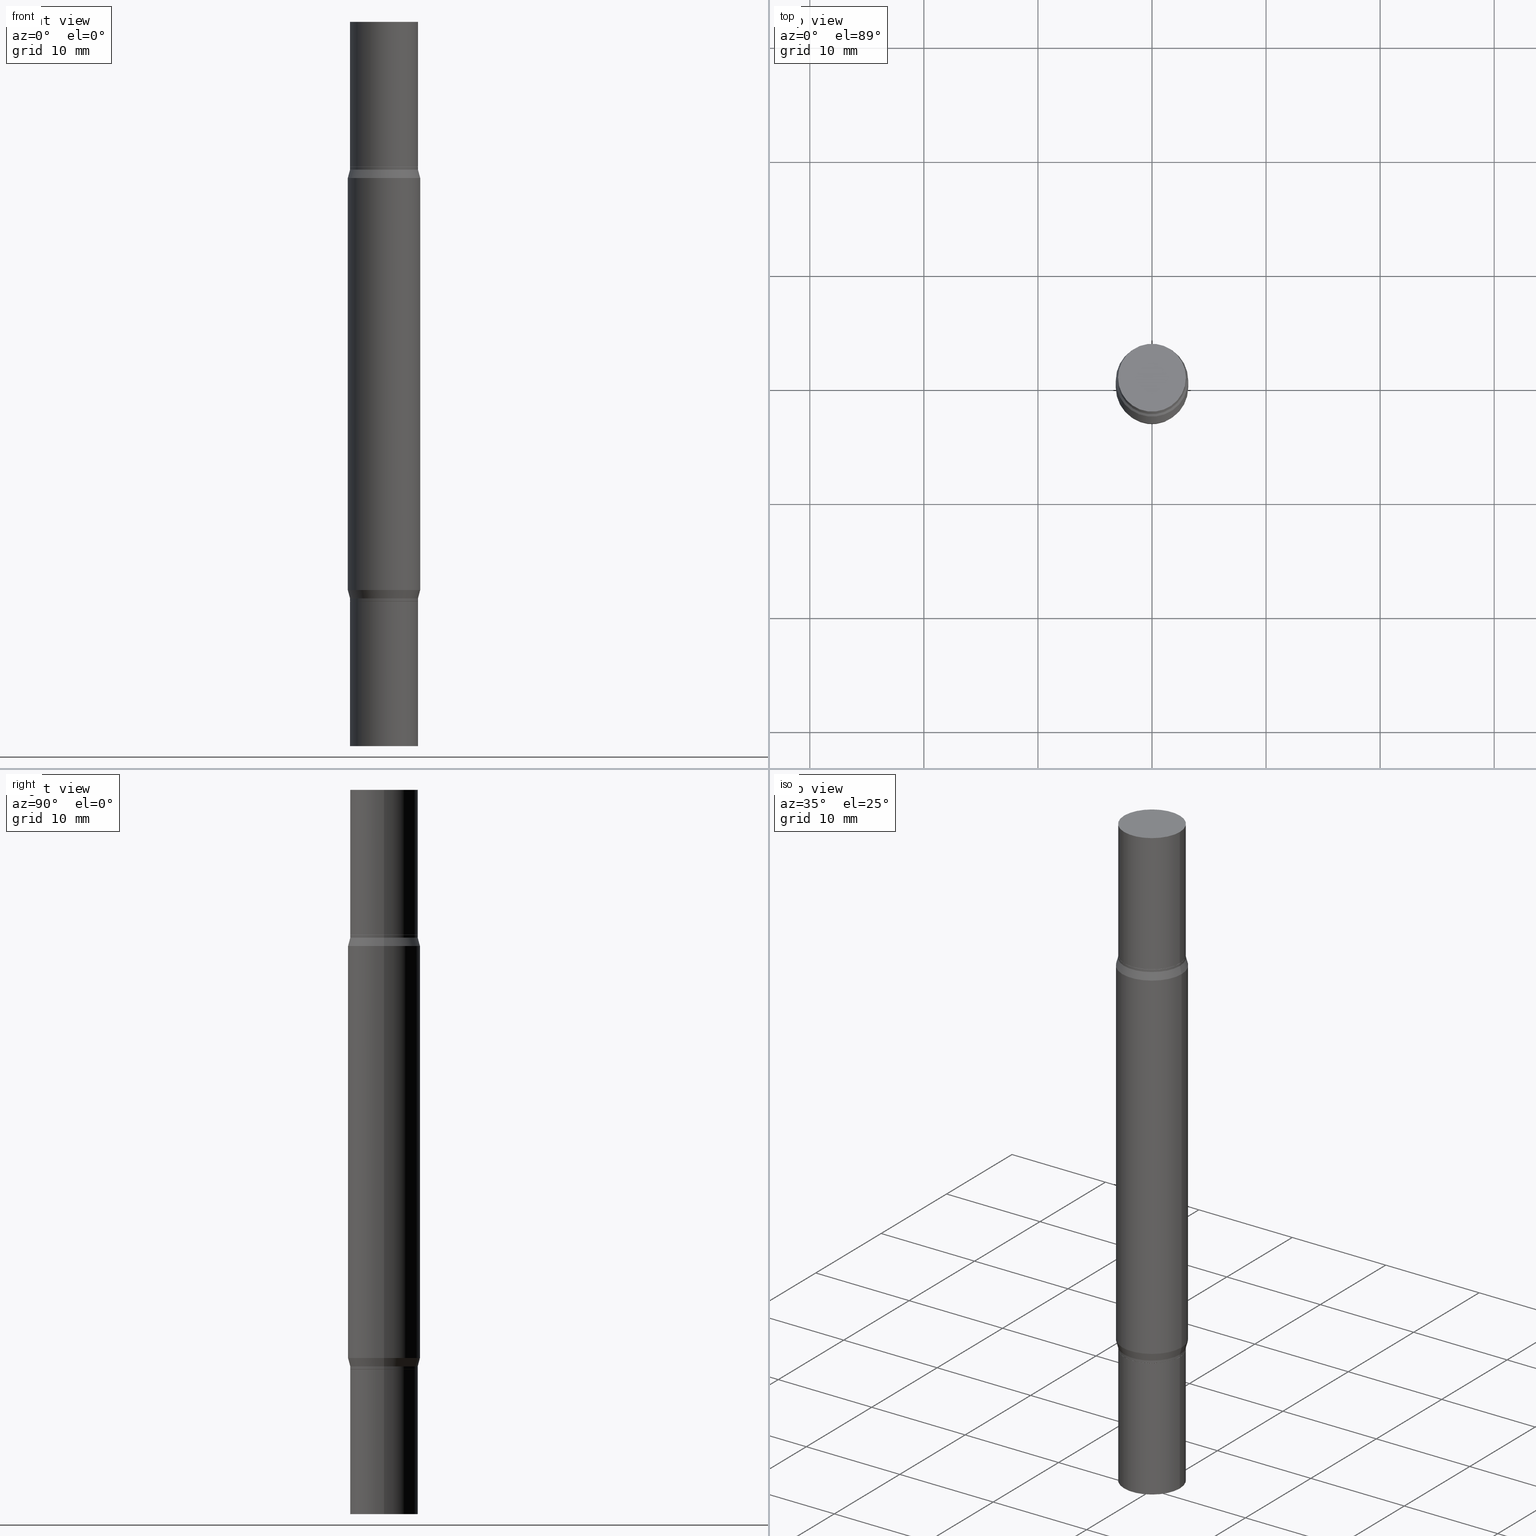
[diagram: canonical four-view strip — front | top / right | iso, engineering-drawing reading convention]
A machine part, canonical four-view strip (front | top / right | iso — engineering-drawing reading convention). The complete STEP part file that produces these views, byte-faithful:
ISO-10303-21;
HEADER;
FILE_DESCRIPTION (( 'STEP AP203' ),
    '1' );
FILE_NAME ('39677.STEP',
    '2024-03-04T16:07:31',
    ( '' ),
    ( '' ),
    'SwSTEP 2.0',
    'SolidWorks 2023',
    '' );
FILE_SCHEMA (( 'CONFIG_CONTROL_DESIGN' ));
ENDSEC;

DATA;
#1 = DIRECTION ( 'NONE',  ( 2.445468806185136597E-29, 3.491805094961124077E-15, 1.000000000000000000 ) ) ;
#2 = EDGE_LOOP ( 'NONE', ( #685, #761, #935, #938 ) ) ;
#3 = ADVANCED_FACE ( 'NONE', ( #973 ), #708, .T. ) ;
#4 = ORIENTED_EDGE ( 'NONE', *, *, #117, .T. ) ;
#5 = DIRECTION ( 'NONE',  ( 0.2588190451025205729, -5.180148453816002468E-15, -0.9659258262890684232 ) ) ;
#6 = DIRECTION ( 'NONE',  ( 1.000000000000000000, -6.982962677686265133E-15, 0.000000000000000000 ) ) ;
#7 = PERSON_AND_ORGANIZATION ( #357, #617 ) ;
#8 = DIRECTION ( 'NONE',  ( 2.438088387897959208E-29, 3.491805094961123683E-15, 1.000000000000000000 ) ) ;
#9 = CLOSED_SHELL ( 'NONE', ( #456, #805, #431, #208 ) ) ;
#10 = FACE_OUTER_BOUND ( 'NONE', #52, .T. ) ;
#11 = CONICAL_SURFACE ( 'NONE', #106, 0.1166999999999999982, 0.7853981633974653764 ) ;
#12 = ORIENTED_EDGE ( 'NONE', *, *, #864, .F. ) ;
#13 = APPROVAL_DATE_TIME ( #703, #673 ) ;
#14 = ORIENTED_EDGE ( 'NONE', *, *, #173, .F. ) ;
#15 = FACE_OUTER_BOUND ( 'NONE', #341, .T. ) ;
#16 = FACE_OUTER_BOUND ( 'NONE', #808, .T. ) ;
#17 = CARTESIAN_POINT ( 'NONE',  ( -0.1171999999999996239, -9.763655379438779721E-16, -0.5099999999999994538 ) ) ;
#18 = DIRECTION ( 'NONE',  ( 1.000000000000000000, -6.982962677686265922E-15, 0.000000000000000000 ) ) ;
#19 = CARTESIAN_POINT ( 'NONE',  ( 4.866482924308422209E-29, -1.780415903282698911E-15, -0.5099999999999994538 ) ) ;
#20 = CALENDAR_DATE ( 2024, 4, 3 ) ;
#21 = ORIENTED_EDGE ( 'NONE', *, *, #565, .T. ) ;
#22 = EDGE_CURVE ( 'NONE', #907, #859, #436, .T. ) ;
#23 = CARTESIAN_POINT ( 'NONE',  ( 0.000000000000000000, -8.729108042255335103E-15, -2.499999999999999556 ) ) ;
#24 = VECTOR ( 'NONE', #726, 39.37007874015748143 ) ;
#25 = CARTESIAN_POINT ( 'NONE',  ( 0.1250000000000000000, -2.754932671384765144E-15, -0.5391099962990381078 ) ) ;
#26 = ORIENTED_EDGE ( 'NONE', *, *, #128, .F. ) ;
#27 = LINE ( 'NONE', #640, #694 ) ;
#28 = ADVANCED_FACE ( 'NONE', ( #314 ), #566, .T. ) ;
#29 = DIRECTION ( 'NONE',  ( 0.000000000000000000, 1.000000000000000000, -4.370956789862821150E-15 ) ) ;
#30 = ORIENTED_EDGE ( 'NONE', *, *, #448, .F. ) ;
#31 = DIRECTION ( 'NONE',  ( 2.445468806185136597E-29, 3.491805094961124077E-15, 1.000000000000000000 ) ) ;
#32 = LINE ( 'NONE', #796, #756 ) ;
#33 = EDGE_CURVE ( 'NONE', #192, #65, #491, .T. ) ;
#34 = CYLINDRICAL_SURFACE ( 'NONE', #791, 0.1171999999999999986 ) ;
#35 = EDGE_LOOP ( 'NONE', ( #561, #716, #214, #780 ) ) ;
#36 = CARTESIAN_POINT ( 'NONE',  ( 0.1250000000000000000, -9.601978376966118441E-15, -2.499999999999999556 ) ) ;
#37 = CARTESIAN_POINT ( 'NONE',  ( 4.890937612370273754E-29, -6.982962677686291954E-15, -2.000000000000000444 ) ) ;
#38 = FACE_OUTER_BOUND ( 'NONE', #35, .T. ) ;
#39 = VECTOR ( 'NONE', #404, 39.37007874015748143 ) ;
#40 = CIRCLE ( 'NONE', #335, 0.1171999999999999986 ) ;
#41 = ORIENTED_EDGE ( 'NONE', *, *, #103, .F. ) ;
#42 = AXIS2_PLACEMENT_3D ( 'NONE', #717, #31, #567 ) ;
#43 = PLANE ( 'NONE',  #896 ) ;
#44 = CARTESIAN_POINT ( 'NONE',  ( 4.795295336410958635E-29, -1.882062336673981410E-15, -0.5391099962990381078 ) ) ;
#45 = EDGE_CURVE ( 'NONE', #859, #630, #163, .T. ) ;
#46 = DIRECTION ( 'NONE',  ( -1.000000000000000000, 6.982962677686265922E-15, -4.876176775795935793E-29 ) ) ;
#47 = ADVANCED_FACE ( 'NONE', ( #425 ), #34, .T. ) ;
#48 = EDGE_LOOP ( 'NONE', ( #323, #293, #306, #217 ) ) ;
#49 = DIRECTION ( 'NONE',  ( -2.445468806185136597E-29, -3.491805094961124077E-15, -1.000000000000000000 ) ) ;
#50 = DIRECTION ( 'NONE',  ( 0.2588190451025205729, 1.565188264969628081E-15, 0.9659258262890684232 ) ) ;
#51 = ADVANCED_FACE ( 'NONE', ( #700 ), #612, .T. ) ;
#52 = EDGE_LOOP ( 'NONE', ( #915, #182, #651, #608 ) ) ;
#53 = ADVANCED_FACE ( 'NONE', ( #571 ), #669, .T. ) ;
#54 = DIRECTION ( 'NONE',  ( 1.000000000000000000, -6.982962677686265922E-15, 2.260776888683160832E-33 ) ) ;
#55 = AXIS2_PLACEMENT_3D ( 'NONE', #302, #914, #395 ) ;
#56 = VERTEX_POINT ( 'NONE', #25 ) ;
#57 = CONICAL_SURFACE ( 'NONE', #742, 0.1166999999999999982, 0.7853981633974653764 ) ;
#58 = AXIS2_PLACEMENT_3D ( 'NONE', #279, #884, #209 ) ;
#59 = AXIS2_PLACEMENT_3D ( 'NONE', #968, #814, #294 ) ;
#60 = ADVANCED_FACE ( 'NONE', ( #715 ), #550, .T. ) ;
#61 = CARTESIAN_POINT ( 'NONE',  ( 0.1171999999999999154, -2.565646980705395418E-15, -0.5004999999999991678 ) ) ;
#62 = ORIENTED_EDGE ( 'NONE', *, *, #689, .T. ) ;
#63 = APPROVAL ( #159, 'UNSPECIFIED' ) ;
#64 = LINE ( 'NONE', #832, #399 ) ;
#65 = VERTEX_POINT ( 'NONE', #638 ) ;
#66 = DIRECTION ( 'NONE',  ( -2.445468806185136877E-29, -3.491805094961123683E-15, -1.000000000000000000 ) ) ;
#67 = DIRECTION ( 'NONE',  ( -2.445468806185136877E-29, -3.491805094961123683E-15, -1.000000000000000000 ) ) ;
#68 = MANIFOLD_SOLID_BREP ( 'Mirror1[3]', #659 ) ;
#69 = CARTESIAN_POINT ( 'NONE',  ( 4.890937612370273754E-29, -1.745497852333085568E-15, -0.4999999999999993339 ) ) ;
#70 = CIRCLE ( 'NONE', #627, 0.1171999999999996239 ) ;
#71 = VECTOR ( 'NONE', #439, 39.37007874015748143 ) ;
#72 = FACE_OUTER_BOUND ( 'NONE', #513, .T. ) ;
#73 = CIRCLE ( 'NONE', #944, 0.1171999999999999986 ) ;
#74 = VECTOR ( 'NONE', #66, 39.37007874015748143 ) ;
#75 = DIRECTION ( 'NONE',  ( -2.445468806185136597E-29, 3.491481338843145583E-15, 1.000000000000000000 ) ) ;
#76 = ORIENTED_EDGE ( 'NONE', *, *, #613, .F. ) ;
#77 = DATE_AND_TIME ( #87, #352 ) ;
#78 = EDGE_LOOP ( 'NONE', ( #277, #338 ) ) ;
#79 = MANIFOLD_SOLID_BREP ( 'Mirror1[4]', #909 ) ;
#80 = CARTESIAN_POINT ( 'NONE',  ( 6.113672015462842613E-29, 4.046951474745467748E-19, 5.463695987328526437E-16 ) ) ;
#81 = ORIENTED_EDGE ( 'NONE', *, *, #969, .F. ) ;
#82 = ORIENTED_EDGE ( 'NONE', *, *, #869, .F. ) ;
#83 = DESIGN_CONTEXT ( 'detailed design', #838, 'design' ) ;
#84 = DIRECTION ( 'NONE',  ( 1.000000000000000000, -6.982962677686265922E-15, 4.876176775795935793E-29 ) ) ;
#85 = CARTESIAN_POINT ( 'NONE',  ( -0.1171999999999996239, -9.597794637428108009E-16, -0.5099999999999994538 ) ) ;
#86 = ORIENTED_EDGE ( 'NONE', *, *, #558, .F. ) ;
#87 = CALENDAR_DATE ( 2024, 4, 3 ) ;
#88 = DIRECTION ( 'NONE',  ( -2.438088387897960049E-29, 3.491481338843145188E-15, 1.000000000000000000 ) ) ;
#89 = CARTESIAN_POINT ( 'NONE',  ( 4.890937612370273194E-29, -1.745497852333086357E-15, -0.4999999999999996114 ) ) ;
#90 = CIRCLE ( 'NONE', #42, 0.1171999999999999154 ) ;
#91 = DIRECTION ( 'NONE',  ( 1.000000000000000000, -6.982962677686267499E-15, 0.000000000000000000 ) ) ;
#92 = EDGE_LOOP ( 'NONE', ( #490, #639, #41, #290 ) ) ;
#93 = DIRECTION ( 'NONE',  ( 1.000000000000000000, -6.982962677686265133E-15, 0.000000000000000000 ) ) ;
#94 = EDGE_CURVE ( 'NONE', #298, #353, #136, .T. ) ;
#95 = CARTESIAN_POINT ( 'NONE',  ( 0.1171999999999999154, -7.799620162841700511E-15, -1.999500000000000277 ) ) ;
#96 = ADVANCED_FACE ( 'NONE', ( #337 ), #344, .T. ) ;
#97 = ORIENTED_EDGE ( 'NONE', *, *, #383, .F. ) ;
#98 = EDGE_CURVE ( 'NONE', #740, #665, #262, .T. ) ;
#99 = LINE ( 'NONE', #923, #755 ) ;
#100 = EDGE_CURVE ( 'NONE', #170, #457, #482, .T. ) ;
#101 = ORIENTED_EDGE ( 'NONE', *, *, #575, .T. ) ;
#102 = CARTESIAN_POINT ( 'NONE',  ( 6.156007611001344257E-29, -8.668076364704272707E-15, -2.500000000000000000 ) ) ;
#103 = EDGE_CURVE ( 'NONE', #899, #658, #348, .T. ) ;
#104 = AXIS2_PLACEMENT_3D ( 'NONE', #69, #381, #6 ) ;
#105 = AXIS2_PLACEMENT_3D ( 'NONE', #724, #351, #590 ) ;
#106 = AXIS2_PLACEMENT_3D ( 'NONE', #239, #476, #93 ) ;
#107 = CARTESIAN_POINT ( 'NONE',  ( 4.795295336410958635E-29, -1.882062336673981410E-15, -0.5391099962990381078 ) ) ;
#108 = ORIENTED_EDGE ( 'NONE', *, *, #243, .F. ) ;
#109 = DIRECTION ( 'NONE',  ( 2.445468806185136597E-29, 3.491805094961124077E-15, 1.000000000000000000 ) ) ;
#110 = DIRECTION ( 'NONE',  ( -2.445468806185136597E-29, 3.491481338843145583E-15, 1.000000000000000000 ) ) ;
#111 = DIRECTION ( 'NONE',  ( 1.000000000000000000, -6.982962677686267499E-15, 0.000000000000000000 ) ) ;
#112 = ORIENTED_EDGE ( 'NONE', *, *, #738, .T. ) ;
#113 = PLANE ( 'NONE',  #58 ) ;
#114 = DIRECTION ( 'NONE',  ( -2.445468806185136877E-29, -3.491805094961123683E-15, -1.000000000000000000 ) ) ;
#115 = DIRECTION ( 'NONE',  ( 1.000000000000000000, -6.982962677686267499E-15, 0.000000000000000000 ) ) ;
#116 = ORIENTED_EDGE ( 'NONE', *, *, #542, .T. ) ;
#117 = EDGE_CURVE ( 'NONE', #683, #129, #801, .T. ) ;
#118 = CARTESIAN_POINT ( 'NONE',  ( 6.113672015462842613E-29, 4.046951474745467748E-19, 5.463695987328526437E-16 ) ) ;
#119 = EDGE_CURVE ( 'NONE', #353, #412, #563, .T. ) ;
#120 = DIRECTION ( 'NONE',  ( -2.445468806185136597E-29, 3.491481338843145583E-15, 1.000000000000000000 ) ) ;
#121 = DIRECTION ( 'NONE',  ( 1.000000000000000000, -6.982962677686267499E-15, 0.000000000000000000 ) ) ;
#122 = CIRCLE ( 'NONE', #960, 0.1171999999999996239 ) ;
#123 = CIRCLE ( 'NONE', #811, 0.1171999999999999154 ) ;
#124 = ORIENTED_EDGE ( 'NONE', *, *, #100, .F. ) ;
#125 = LINE ( 'NONE', #434, #24 ) ;
#126 = AXIS2_PLACEMENT_3D ( 'NONE', #139, #514, #903 ) ;
#127 = CARTESIAN_POINT ( 'NONE',  ( 0.1171999999999999986, -2.563901078157915826E-15, -0.4999999999999993339 ) ) ;
#128 = EDGE_CURVE ( 'NONE', #253, #170, #807, .T. ) ;
#129 = VERTEX_POINT ( 'NONE', #95 ) ;
#130 = CARTESIAN_POINT ( 'NONE',  ( -0.1250000000000000000, -7.871545792533893657E-15, -2.499999999999999556 ) ) ;
#131 = EDGE_CURVE ( 'NONE', #398, #609, #926, .T. ) ;
#132 = LINE ( 'NONE', #358, #792 ) ;
#133 = ORIENTED_EDGE ( 'NONE', *, *, #195, .T. ) ;
#134 = CARTESIAN_POINT ( 'NONE',  ( -0.1250000000000000000, -7.871545792533893657E-15, -2.499999999999999556 ) ) ;
#135 = EDGE_CURVE ( 'NONE', #833, #643, #70, .T. ) ;
#136 = CIRCLE ( 'NONE', #692, 0.1171999999999996239 ) ;
#137 = ORIENTED_EDGE ( 'NONE', *, *, #147, .F. ) ;
#138 = CONICAL_SURFACE ( 'NONE', #218, 0.1171999999999996239, 0.2617993877991492413 ) ;
#139 = CARTESIAN_POINT ( 'NONE',  ( 0.000000000000000000, -8.729108042255335103E-15, -2.499999999999999556 ) ) ;
#140 = CIRCLE ( 'NONE', #419, 0.1166999999999999982 ) ;
#141 = CIRCLE ( 'NONE', #538, 0.1171999999999996239 ) ;
#142 = EDGE_CURVE ( 'NONE', #931, #386, #99, .T. ) ;
#143 = PLANE ( 'NONE',  #927 ) ;
#144 = ORIENTED_EDGE ( 'NONE', *, *, #705, .F. ) ;
#145 = CARTESIAN_POINT ( 'NONE',  ( -0.1166999999999999982, -9.440355627674452081E-16, -0.4999999999999993339 ) ) ;
#146 = ORIENTED_EDGE ( 'NONE', *, *, #558, .T. ) ;
#147 = EDGE_CURVE ( 'NONE', #630, #222, #203, .T. ) ;
#148 = DIRECTION ( 'NONE',  ( 1.000000000000000000, 0.000000000000000000, 0.000000000000000000 ) ) ;
#149 = ORIENTED_EDGE ( 'NONE', *, *, #119, .T. ) ;
#150 = PLANE ( 'NONE',  #493 ) ;
#151 = ORIENTED_EDGE ( 'NONE', *, *, #613, .T. ) ;
#152 = PERSON_AND_ORGANIZATION_ROLE ( 'design_supplier' ) ;
#153 = ORIENTED_EDGE ( 'NONE', *, *, #980, .T. ) ;
#154 = AXIS2_PLACEMENT_3D ( 'NONE', #443, #210, #46 ) ;
#155 = DIRECTION ( 'NONE',  ( -2.445468806185136597E-29, 3.491481338843145583E-15, 1.000000000000000000 ) ) ;
#156 = CIRCLE ( 'NONE', #300, 0.1250000000000000000 ) ;
#157 = DIRECTION ( 'NONE',  ( 1.000000000000000000, -6.982962677686266711E-15, 0.000000000000000000 ) ) ;
#158 = EDGE_LOOP ( 'NONE', ( #82, #496, #372, #259 ) ) ;
#159 = APPROVAL_STATUS ( 'not_yet_approved' ) ;
#160 = CARTESIAN_POINT ( 'NONE',  ( 0.1171999999999996239, -2.598819129107527000E-15, -0.5099999999999994538 ) ) ;
#161 = ADVANCED_FACE ( 'NONE', ( #854 ), #138, .T. ) ;
#162 = DIRECTION ( 'NONE',  ( -1.000000000000000000, 6.982962677686265922E-15, -2.260776888683160832E-33 ) ) ;
#163 = LINE ( 'NONE', #530, #280 ) ;
#164 = PERSON_AND_ORGANIZATION ( #357, #617 ) ;
#165 = EDGE_LOOP ( 'NONE', ( #534, #516, #4, #327 ) ) ;
#166 = CARTESIAN_POINT ( 'NONE',  ( -0.1250000000000000000, -2.265644755392513326E-15, -1.249999999999999778 ) ) ;
#167 = CYLINDRICAL_SURFACE ( 'NONE', #598, 0.1171999999999999986 ) ;
#168 = ORIENTED_EDGE ( 'NONE', *, *, #963, .F. ) ;
#169 = APPROVAL_DATE_TIME ( #397, #310 ) ;
#170 = VERTEX_POINT ( 'NONE', #271 ) ;
#171 = DIRECTION ( 'NONE',  ( 1.000000000000000000, -6.982962677686265922E-15, 2.260776888683160832E-33 ) ) ;
#172 = CIRCLE ( 'NONE', #910, 0.1171999999999999986 ) ;
#173 = EDGE_CURVE ( 'NONE', #630, #831, #650, .T. ) ;
#174 = CYLINDRICAL_SURFACE ( 'NONE', #727, 0.1171999999999999986 ) ;
#175 = CIRCLE ( 'NONE', #729, 0.1250000000000000000 ) ;
#176 = CARTESIAN_POINT ( 'NONE',  ( 0.1166999999999999982, -2.560409596819072819E-15, -0.4999999999999993339 ) ) ;
#177 = COORDINATED_UNIVERSAL_TIME_OFFSET ( 5, 0, .BEHIND. ) ;
#178 = ORIENTED_EDGE ( 'NONE', *, *, #546, .F. ) ;
#179 = CYLINDRICAL_SURFACE ( 'NONE', #350, 0.1171999999999999986 ) ;
#180 = CARTESIAN_POINT ( 'NONE',  ( 4.890937612370273754E-29, -1.745497852333085568E-15, -0.4999999999999993339 ) ) ;
#181 = ADVANCED_FACE ( 'NONE', ( #38 ), #886, .T. ) ;
#182 = ORIENTED_EDGE ( 'NONE', *, *, #142, .T. ) ;
#183 = DIRECTION ( 'NONE',  ( -2.445468806185136597E-29, 3.491481338843145583E-15, 1.000000000000000000 ) ) ;
#184 = DIRECTION ( 'NONE',  ( 0.7071067811865595631, -7.406779323393320831E-15, -0.7071067811865354713 ) ) ;
#185 = ADVANCED_FACE ( 'NONE', ( #654 ), #292, .F. ) ;
#186 = ORIENTED_EDGE ( 'NONE', *, *, #233, .T. ) ;
#187 = CARTESIAN_POINT ( 'NONE',  ( -0.1171999999999996239, -9.597794637428108009E-16, -0.5099999999999994538 ) ) ;
#188 = CLOSED_SHELL ( 'NONE', ( #51, #304, #636, #559, #161, #445, #28, #633, #318, #278, #670, #952, #53, #181, #681, #602 ) ) ;
#189 = VECTOR ( 'NONE', #739, 39.37007874015748143 ) ;
#190 = AXIS2_PLACEMENT_3D ( 'NONE', #860, #183, #400 ) ;
#191 = DIRECTION ( 'NONE',  ( -2.445468806185136597E-29, 3.491481338843145583E-15, 1.000000000000000000 ) ) ;
#192 = VERTEX_POINT ( 'NONE', #61 ) ;
#193 = DIRECTION ( 'NONE',  ( 1.000000000000000000, -6.982962677686265922E-15, 0.000000000000000000 ) ) ;
#194 = CARTESIAN_POINT ( 'NONE',  ( 4.889714877967180953E-29, -6.981216937016870451E-15, -1.999500000000000277 ) ) ;
#195 = EDGE_CURVE ( 'NONE', #457, #907, #812, .T. ) ;
#196 = DIRECTION ( 'NONE',  ( -2.445468806185136597E-29, 3.491481338843145583E-15, 1.000000000000000000 ) ) ;
#197 = ORIENTED_EDGE ( 'NONE', *, *, #131, .F. ) ;
#198 = LINE ( 'NONE', #863, #336 ) ;
#199 = DIRECTION ( 'NONE',  ( 1.000000000000000000, -6.982962677686266711E-15, 0.000000000000000000 ) ) ;
#200 = CARTESIAN_POINT ( 'NONE',  ( 0.1250000000000000000, -2.754932671384765144E-15, -0.5391099962990381078 ) ) ;
#201 = ORIENTED_EDGE ( 'NONE', *, *, #173, .T. ) ;
#202 = DIRECTION ( 'NONE',  ( -0.2588190451025205729, 5.211531920934545520E-15, 0.9659258262890684232 ) ) ;
#203 = CIRCLE ( 'NONE', #333, 0.1250000000000000000 ) ;
#204 = DIRECTION ( 'NONE',  ( -2.445468806185136597E-29, 3.491481338843145583E-15, 1.000000000000000000 ) ) ;
#205 = AXIS2_PLACEMENT_3D ( 'NONE', #240, #75, #390 ) ;
#206 = CIRCLE ( 'NONE', #599, 0.1171999999999999986 ) ;
#207 = VERTEX_POINT ( 'NONE', #127 ) ;
#208 = ADVANCED_FACE ( 'NONE', ( #289 ), #509, .F. ) ;
#209 = DIRECTION ( 'NONE',  ( 0.000000000000000000, 1.000000000000000000, -3.491643216902134435E-15 ) ) ;
#210 = DIRECTION ( 'NONE',  ( 2.438088387897960049E-29, -3.491481338843145188E-15, -1.000000000000000000 ) ) ;
#211 = ORIENTED_EDGE ( 'NONE', *, *, #603, .F. ) ;
#212 = APPROVAL_ROLE ( '' ) ;
#213 = DIRECTION ( 'NONE',  ( 1.000000000000000000, -6.982962677686266711E-15, 4.876176775795935232E-29 ) ) ;
#214 = ORIENTED_EDGE ( 'NONE', *, *, #815, .T. ) ;
#215 = CARTESIAN_POINT ( 'NONE',  ( 0.000000000000000000, 0.000000000000000000, 0.000000000000000000 ) ) ;
#216 = DIRECTION ( 'NONE',  ( 1.000000000000000000, -6.982962677686266711E-15, 0.000000000000000000 ) ) ;
#217 = ORIENTED_EDGE ( 'NONE', *, *, #275, .F. ) ;
#218 = AXIS2_PLACEMENT_3D ( 'NONE', #19, #331, #858 ) ;
#219 = DIRECTION ( 'NONE',  ( 1.000000000000000000, -6.982962677686261977E-15, 0.000000000000000000 ) ) ;
#220 = AXIS2_PLACEMENT_3D ( 'NONE', #89, #699, #940 ) ;
#221 = CARTESIAN_POINT ( 'NONE',  ( 0.000000000000000000, -8.729108042255335103E-15, -2.499999999999999556 ) ) ;
#222 = VERTEX_POINT ( 'NONE', #200 ) ;
#223 = CYLINDRICAL_SURFACE ( 'NONE', #126, 0.1250000000000000000 ) ;
#224 = CARTESIAN_POINT ( 'NONE',  ( 4.890937612370273754E-29, -6.982962677686291954E-15, -2.000000000000000444 ) ) ;
#225 = DIRECTION ( 'NONE',  ( 1.000000000000000000, -6.982962677686269866E-15, 0.000000000000000000 ) ) ;
#226 = ORIENTED_EDGE ( 'NONE', *, *, #98, .T. ) ;
#227 = CARTESIAN_POINT ( 'NONE',  ( -0.1166999999999999982, -6.153759305054254853E-15, -2.000000000000000444 ) ) ;
#228 = EDGE_CURVE ( 'NONE', #813, #748, #475, .T. ) ;
#229 = ORIENTED_EDGE ( 'NONE', *, *, #921, .T. ) ;
#230 = AXIS2_PLACEMENT_3D ( 'NONE', #461, #605, #844 ) ;
#231 = ORIENTED_EDGE ( 'NONE', *, *, #672, .F. ) ;
#232 = AXIS2_PLACEMENT_3D ( 'NONE', #953, #204, #515 ) ;
#233 = EDGE_CURVE ( 'NONE', #359, #643, #449, .T. ) ;
#234 = DIRECTION ( 'NONE',  ( -2.445468806185136877E-29, 3.491481338843145188E-15, 1.000000000000000000 ) ) ;
#235 = CONICAL_SURFACE ( 'NONE', #190, 0.1166999999999999982, 0.7853981633974653764 ) ;
#236 = FACE_OUTER_BOUND ( 'NONE', #158, .T. ) ;
#237 = ORIENTED_EDGE ( 'NONE', *, *, #733, .F. ) ;
#238 = COORDINATED_UNIVERSAL_TIME_OFFSET ( 5, 0, .BEHIND. ) ;
#239 = CARTESIAN_POINT ( 'NONE',  ( 4.890937612370273754E-29, -6.982962677686291954E-15, -2.000000000000000444 ) ) ;
#240 = CARTESIAN_POINT ( 'NONE',  ( 0.000000000000000000, 0.000000000000000000, 0.000000000000000000 ) ) ;
#241 = ORIENTED_EDGE ( 'NONE', *, *, #869, .T. ) ;
#242 = CARTESIAN_POINT ( 'NONE',  ( -0.1171999999999997766, -7.925057676916513769E-15, -2.499999999999999556 ) ) ;
#243 = EDGE_CURVE ( 'NONE', #763, #683, #809, .T. ) ;
#244 = CARTESIAN_POINT ( 'NONE',  ( 4.795295336410958635E-29, -1.882062336673981410E-15, -0.5391099962990381078 ) ) ;
#245 = DIRECTION ( 'NONE',  ( -2.445468806185136597E-29, 3.491481338843145583E-15, 1.000000000000000000 ) ) ;
#246 = CALENDAR_DATE ( 2024, 4, 3 ) ;
#247 = EDGE_LOOP ( 'NONE', ( #97, #231, #732, #406 ) ) ;
#248 = EDGE_CURVE ( 'NONE', #412, #56, #418, .T. ) ;
#249 = AXIS2_PLACEMENT_3D ( 'NONE', #221, #526, #274 ) ;
#250 = VECTOR ( 'NONE', #114, 39.37007874015748143 ) ;
#251 = EDGE_CURVE ( 'NONE', #643, #833, #122, .T. ) ;
#252 = CARTESIAN_POINT ( 'NONE',  ( 0.000000000000000000, -8.729108042255335103E-15, -2.499999999999999556 ) ) ;
#253 = VERTEX_POINT ( 'NONE', #446 ) ;
#254 = CARTESIAN_POINT ( 'NONE',  ( 0.1166999999999999982, -2.560409596819072819E-15, -0.4999999999999993339 ) ) ;
#255 = DIRECTION ( 'NONE',  ( -0.000000000000000000, -3.491643216902134830E-15, -1.000000000000000000 ) ) ;
#256 = ORIENTED_EDGE ( 'NONE', *, *, #33, .F. ) ;
#257 = CARTESIAN_POINT ( 'NONE',  ( -0.1171999999999999986, 8.327560863108374081E-16, -5.764991925778749121E-30 ) ) ;
#258 = DIRECTION ( 'NONE',  ( 1.000000000000000000, -6.982962677686266711E-15, 0.000000000000000000 ) ) ;
#259 = ORIENTED_EDGE ( 'NONE', *, *, #195, .F. ) ;
#260 = DIRECTION ( 'NONE',  ( 1.000000000000000000, -6.982962677686265922E-15, 4.876176775795935793E-29 ) ) ;
#261 = DIRECTION ( 'NONE',  ( 2.445468806185136597E-29, 3.491805094961124077E-15, 1.000000000000000000 ) ) ;
#262 = CIRCLE ( 'NONE', #821, 0.1171999999999999986 ) ;
#263 = CC_DESIGN_PERSON_AND_ORGANIZATION_ASSIGNMENT ( #164, #152, ( #946 ) ) ;
#264 = CIRCLE ( 'NONE', #521, 0.1171999999999999986 ) ;
#265 = AXIS2_PLACEMENT_3D ( 'NONE', #877, #804, #728 ) ;
#266 = CARTESIAN_POINT ( 'NONE',  ( 0.000000000000000000, -8.729108042255335103E-15, -2.499999999999999556 ) ) ;
#267 = AXIS2_PLACEMENT_3D ( 'NONE', #291, #592, #219 ) ;
#268 = ORIENTED_EDGE ( 'NONE', *, *, #575, .F. ) ;
#269 = CARTESIAN_POINT ( 'NONE',  ( 0.1171999999999999986, -8.179985306773559567E-16, 5.463695987328526437E-16 ) ) ;
#270 = FACE_OUTER_BOUND ( 'NONE', #918, .T. ) ;
#271 = CARTESIAN_POINT ( 'NONE',  ( 0.1166999999999999982, -2.560409596819072819E-15, -0.4999999999999993339 ) ) ;
#272 = ORIENTED_EDGE ( 'NONE', *, *, #284, .T. ) ;
#273 = CARTESIAN_POINT ( 'NONE',  ( 3.056836007731420185E-29, -4.364351673553931682E-15, -1.249999999999999778 ) ) ;
#274 = DIRECTION ( 'NONE',  ( 1.000000000000000000, -6.982962677686266711E-15, 0.000000000000000000 ) ) ;
#275 = EDGE_CURVE ( 'NONE', #833, #893, #132, .T. ) ;
#276 = CARTESIAN_POINT ( 'NONE',  ( 0.1171999999999997766, -9.547511268080164375E-15, -2.499999999999999556 ) ) ;
#277 = ORIENTED_EDGE ( 'NONE', *, *, #980, .F. ) ;
#278 = ADVANCED_FACE ( 'NONE', ( #594 ), #371, .T. ) ;
#279 = CARTESIAN_POINT ( 'NONE',  ( 0.000000000000000000, 0.000000000000000000, -1.249999999999999778 ) ) ;
#280 = VECTOR ( 'NONE', #707, 39.37007874015748143 ) ;
#281 = EDGE_CURVE ( 'NONE', #353, #298, #776, .T. ) ;
#282 = DIRECTION ( 'NONE',  ( 1.000000000000000000, -6.982962677686270655E-15, 0.000000000000000000 ) ) ;
#283 = VECTOR ( 'NONE', #836, 39.37007874015748143 ) ;
#284 = EDGE_CURVE ( 'NONE', #893, #831, #586, .T. ) ;
#285 = VECTOR ( 'NONE', #618, 39.37007874015748143 ) ;
#286 = ORIENTED_EDGE ( 'NONE', *, *, #361, .T. ) ;
#287 = CIRCLE ( 'NONE', #267, 0.1171999999999999986 ) ;
#288 = EDGE_CURVE ( 'NONE', #802, #376, #587, .T. ) ;
#289 = FACE_OUTER_BOUND ( 'NONE', #967, .T. ) ;
#290 = ORIENTED_EDGE ( 'NONE', *, *, #784, .F. ) ;
#291 = CARTESIAN_POINT ( 'NONE',  ( 6.113672015462842613E-29, -8.728703347107864943E-15, -2.500000000000000000 ) ) ;
#292 = PLANE ( 'NONE',  #380 ) ;
#293 = ORIENTED_EDGE ( 'NONE', *, *, #842, .T. ) ;
#294 = DIRECTION ( 'NONE',  ( 1.000000000000000000, -6.982962677686265922E-15, 0.000000000000000000 ) ) ;
#295 = DIRECTION ( 'NONE',  ( 2.445468806185136597E-29, 3.491805094961124077E-15, 1.000000000000000000 ) ) ;
#296 = AXIS2_PLACEMENT_3D ( 'NONE', #677, #977, #91 ) ;
#297 = VECTOR ( 'NONE', #560, 39.37007874015748143 ) ;
#298 = VERTEX_POINT ( 'NONE', #966 ) ;
#299 = CONICAL_SURFACE ( 'NONE', #853, 0.1166999999999999982, 0.7853981633974653764 ) ;
#300 = AXIS2_PLACEMENT_3D ( 'NONE', #479, #625, #606 ) ;
#301 = LINE ( 'NONE', #905, #365 ) ;
#302 = CARTESIAN_POINT ( 'NONE',  ( 4.890937612370273754E-29, -1.745497852333085568E-15, -0.4999999999999993339 ) ) ;
#303 = APPROVAL_STATUS ( 'not_yet_approved' ) ;
#304 = ADVANCED_FACE ( 'NONE', ( #970 ), #432, .T. ) ;
#305 = CARTESIAN_POINT ( 'NONE',  ( 0.1171999999999999986, -9.547511268080165952E-15, -2.499999999999999556 ) ) ;
#306 = ORIENTED_EDGE ( 'NONE', *, *, #284, .F. ) ;
#307 = SHAPE_DEFINITION_REPRESENTATION ( #519, #579 ) ;
#308 = CC_DESIGN_PERSON_AND_ORGANIZATION_ASSIGNMENT ( #531, #466, ( #368 ) ) ;
#309 = EDGE_LOOP ( 'NONE', ( #116, #817 ) ) ;
#310 = APPROVAL ( #303, 'UNSPECIFIED' ) ;
#311 = FACE_OUTER_BOUND ( 'NONE', #467, .T. ) ;
#312 = DIRECTION ( 'NONE',  ( 2.445468806185136597E-29, 3.491805094961124077E-15, 1.000000000000000000 ) ) ;
#313 = ADVANCED_FACE ( 'NONE', ( #843 ), #143, .F. ) ;
#314 = FACE_OUTER_BOUND ( 'NONE', #588, .T. ) ;
#315 = PERSON_AND_ORGANIZATION ( #357, #617 ) ;
#316 = ORIENTED_EDGE ( 'NONE', *, *, #389, .T. ) ;
#317 = CIRCLE ( 'NONE', #450, 0.1171999999999999986 ) ;
#318 = ADVANCED_FACE ( 'NONE', ( #768 ), #57, .T. ) ;
#319 = DIRECTION ( 'NONE',  ( -1.000000000000000000, 6.982962677686265922E-15, -2.260776888683160832E-33 ) ) ;
#320 = AXIS2_PLACEMENT_3D ( 'NONE', #388, #781, #786 ) ;
#321 = CYLINDRICAL_SURFACE ( 'NONE', #895, 0.1171999999999999986 ) ;
#322 = EDGE_CURVE ( 'NONE', #943, #207, #674, .T. ) ;
#323 = ORIENTED_EDGE ( 'NONE', *, *, #135, .T. ) ;
#324 = CARTESIAN_POINT ( 'NONE',  ( 4.890937612370273754E-29, -1.745497852333085568E-15, -0.4999999999999993339 ) ) ;
#325 = DIRECTION ( 'NONE',  ( 1.000000000000000000, -6.982962677686266711E-15, 0.000000000000000000 ) ) ;
#326 = CARTESIAN_POINT ( 'NONE',  ( 4.866482924308422209E-29, -6.948047864297860305E-15, -1.989999999999999991 ) ) ;
#327 = ORIENTED_EDGE ( 'NONE', *, *, #485, .F. ) ;
#328 = UNCERTAINTY_MEASURE_WITH_UNIT (LENGTH_MEASURE( 1.000000000000000082E-05 ), #830, 'distance_accuracy_value', 'NONE');
#329 = FACE_OUTER_BOUND ( 'NONE', #416, .T. ) ;
#330 = PRODUCT_RELATED_PRODUCT_CATEGORY ( 'detail', '', ( #766 ) ) ;
#331 = DIRECTION ( 'NONE',  ( -2.445468806185136597E-29, -3.491805094961124077E-15, -1.000000000000000000 ) ) ;
#332 = ORIENTED_EDGE ( 'NONE', *, *, #389, .F. ) ;
#333 = AXIS2_PLACEMENT_3D ( 'NONE', #107, #865, #421 ) ;
#334 = DIRECTION ( 'NONE',  ( 2.445468806185136597E-29, 3.491805094961124077E-15, 1.000000000000000000 ) ) ;
#335 = AXIS2_PLACEMENT_3D ( 'NONE', #751, #312, #378 ) ;
#336 = VECTOR ( 'NONE', #501, 39.37007874015748143 ) ;
#337 = FACE_OUTER_BOUND ( 'NONE', #92, .T. ) ;
#338 = ORIENTED_EDGE ( 'NONE', *, *, #98, .F. ) ;
#339 = CARTESIAN_POINT ( 'NONE',  ( -0.1171999999999999986, -7.023076926086241238E-15, -2.000000000000000444 ) ) ;
#340 = DIRECTION ( 'NONE',  ( 1.000000000000000000, -6.982962677686269866E-15, 0.000000000000000000 ) ) ;
#341 = EDGE_LOOP ( 'NONE', ( #906, #427, #548, #21 ) ) ;
#342 = CARTESIAN_POINT ( 'NONE',  ( 0.1171999999999999986, -7.801365903511122804E-15, -2.000000000000000444 ) ) ;
#343 = CARTESIAN_POINT ( 'NONE',  ( 4.866482924308422209E-29, -1.780415903282698911E-15, -0.5099999999999994538 ) ) ;
#344 = CYLINDRICAL_SURFACE ( 'NONE', #396, 0.1250000000000000000 ) ;
#345 = EDGE_LOOP ( 'NONE', ( #30, #720, #955, #286 ) ) ;
#346 = CARTESIAN_POINT ( 'NONE',  ( -0.1171999999999996239, -6.115291777987025461E-15, -1.989999999999999991 ) ) ;
#347 = DIRECTION ( 'NONE',  ( -2.445468806185136597E-29, 3.491481338843145583E-15, 1.000000000000000000 ) ) ;
#348 = CIRCLE ( 'NONE', #473, 0.1250000000000000000 ) ;
#349 = VECTOR ( 'NONE', #747, 39.37007874015748143 ) ;
#350 = AXIS2_PLACEMENT_3D ( 'NONE', #23, #484, #632 ) ;
#351 = DIRECTION ( 'NONE',  ( -2.445468806185136597E-29, 3.491481338843145583E-15, 1.000000000000000000 ) ) ;
#352 = LOCAL_TIME ( 11, 7, 31.00000000000000000, #764 ) ;
#353 = VERTEX_POINT ( 'NONE', #85 ) ;
#354 = EDGE_CURVE ( 'NONE', #763, #359, #901, .T. ) ;
#355 = CARTESIAN_POINT ( 'NONE',  ( 0.1250000000000000000, -3.996077339824737716E-15, -1.249999999999999778 ) ) ;
#356 = DIRECTION ( 'NONE',  ( 2.445468806185136597E-29, 3.491805094961124077E-15, 1.000000000000000000 ) ) ;
#357 = PERSON ( 'UNSPECIFIED', 'UNSPECIFIED', 'UNSPECIFIED', ('UNSPECIFIED'), ('UNSPECIFIED'), ('UNSPECIFIED') ) ;
#358 = CARTESIAN_POINT ( 'NONE',  ( 0.1171999999999996239, -7.766451090122687999E-15, -1.989999999999999991 ) ) ;
#359 = VERTEX_POINT ( 'NONE', #385 ) ;
#360 = DIRECTION ( 'NONE',  ( -2.445468806185136597E-29, -3.491805094961124077E-15, -1.000000000000000000 ) ) ;
#361 = EDGE_CURVE ( 'NONE', #457, #875, #671, .T. ) ;
#362 = CARTESIAN_POINT ( 'NONE',  ( 0.000000000000000000, -8.729108042255335103E-15, -2.499999999999999556 ) ) ;
#363 = ORIENTED_EDGE ( 'NONE', *, *, #438, .F. ) ;
#364 = CARTESIAN_POINT ( 'NONE',  ( 4.795295336410958635E-29, -1.882062336673981410E-15, -0.5391099962990381078 ) ) ;
#365 = VECTOR ( 'NONE', #67, 39.37007874015748143 ) ;
#366 = CIRCLE ( 'NONE', #382, 0.1166999999999999982 ) ;
#367 = ORIENTED_EDGE ( 'NONE', *, *, #103, .T. ) ;
#368 = SECURITY_CLASSIFICATION ( '', '', #930 ) ;
#369 = CARTESIAN_POINT ( 'NONE',  ( -0.1171999999999999986, -7.925057676916510614E-15, -2.499999999999999556 ) ) ;
#370 = CARTESIAN_POINT ( 'NONE',  ( 4.890937612370273194E-29, -6.982962677686291165E-15, -2.000000000000000000 ) ) ;
#371 = CYLINDRICAL_SURFACE ( 'NONE', #533, 0.1171999999999997766 ) ;
#372 = ORIENTED_EDGE ( 'NONE', *, *, #963, .T. ) ;
#373 = EDGE_CURVE ( 'NONE', #386, #207, #264, .T. ) ;
#374 = ADVANCED_FACE ( 'NONE', ( #10 ), #321, .T. ) ;
#375 = CARTESIAN_POINT ( 'NONE',  ( 4.890937612370273754E-29, -1.745497852333085568E-15, -0.4999999999999993339 ) ) ;
#376 = VERTEX_POINT ( 'NONE', #529 ) ;
#377 = MECHANICAL_CONTEXT ( 'NONE', #753, 'mechanical' ) ;
#378 = DIRECTION ( 'NONE',  ( 1.000000000000000000, -6.982962677686266711E-15, 0.000000000000000000 ) ) ;
#379 = CLOSED_SHELL ( 'NONE', ( #96, #481, #60, #463, #770, #505, #3, #647, #933, #750 ) ) ;
#380 = AXIS2_PLACEMENT_3D ( 'NONE', #892, #806, #54 ) ;
#381 = DIRECTION ( 'NONE',  ( -2.445468806185136597E-29, -3.491805094961124077E-15, -1.000000000000000000 ) ) ;
#382 = AXIS2_PLACEMENT_3D ( 'NONE', #498, #622, #435 ) ;
#383 = EDGE_CURVE ( 'NONE', #398, #65, #64, .T. ) ;
#384 = ORIENTED_EDGE ( 'NONE', *, *, #546, .T. ) ;
#385 = CARTESIAN_POINT ( 'NONE',  ( -0.1171999999999999154, -6.148460850706034029E-15, -1.999500000000000277 ) ) ;
#386 = VERTEX_POINT ( 'NONE', #972 ) ;
#387 = APPROVAL_STATUS ( 'not_yet_approved' ) ;
#388 = CARTESIAN_POINT ( 'NONE',  ( 4.889714877967180953E-29, -1.747243754880567132E-15, -0.5004999999999991678 ) ) ;
#389 = EDGE_CURVE ( 'NONE', #298, #56, #532, .T. ) ;
#390 = DIRECTION ( 'NONE',  ( 1.000000000000000000, -6.982962677686266711E-15, 4.876176775795935793E-29 ) ) ;
#391 = ORIENTED_EDGE ( 'NONE', *, *, #322, .T. ) ;
#392 = DATE_TIME_ROLE ( 'classification_date' ) ;
#393 = PLANE ( 'NONE',  #631 ) ;
#394 = CARTESIAN_POINT ( 'NONE',  ( 4.889714877967180953E-29, -1.747243754880567132E-15, -0.5004999999999991678 ) ) ;
#395 = DIRECTION ( 'NONE',  ( 1.000000000000000000, -6.982962677686265133E-15, 0.000000000000000000 ) ) ;
#396 = AXIS2_PLACEMENT_3D ( 'NONE', #252, #634, #937 ) ;
#397 = DATE_AND_TIME ( #246, #713 ) ;
#398 = VERTEX_POINT ( 'NONE', #145 ) ;
#399 = VECTOR ( 'NONE', #468, 39.37007874015748143 ) ;
#400 = DIRECTION ( 'NONE',  ( 1.000000000000000000, -6.982962677686265133E-15, 0.000000000000000000 ) ) ;
#401 =( GEOMETRIC_REPRESENTATION_CONTEXT ( 3 ) GLOBAL_UNCERTAINTY_ASSIGNED_CONTEXT ( ( #328 ) ) GLOBAL_UNIT_ASSIGNED_CONTEXT ( ( #830, #454, #888 ) ) REPRESENTATION_CONTEXT ( 'NONE', 'WORKASPACE' ) );
#402 = EDGE_CURVE ( 'NONE', #65, #353, #301, .T. ) ;
#403 = DIRECTION ( 'NONE',  ( 1.000000000000000000, -6.982962677686269866E-15, 0.000000000000000000 ) ) ;
#404 = DIRECTION ( 'NONE',  ( 0.7071067811865595631, -2.468850131082382884E-15, 0.7071067811865354713 ) ) ;
#405 = DATE_AND_TIME ( #20, #743 ) ;
#406 = ORIENTED_EDGE ( 'NONE', *, *, #33, .T. ) ;
#407 = CARTESIAN_POINT ( 'NONE',  ( 4.890937612370273194E-29, -1.745497852333086357E-15, -0.4999999999999996114 ) ) ;
#408 = EDGE_CURVE ( 'NONE', #802, #798, #172, .T. ) ;
#409 = MANIFOLD_SOLID_BREP ( 'Mirror1[1]', #379 ) ;
#410 = DIRECTION ( 'NONE',  ( -2.445468806185136597E-29, -3.491805094961124077E-15, -1.000000000000000000 ) ) ;
#411 = CALENDAR_DATE ( 2024, 4, 3 ) ;
#412 = VERTEX_POINT ( 'NONE', #619 ) ;
#413 = MANIFOLD_SOLID_BREP ( 'Body-Move/Copy2[1]', #9 ) ;
#414 = CARTESIAN_POINT ( 'NONE',  ( 0.1166999999999999982, -7.797874422172279797E-15, -2.000000000000000444 ) ) ;
#415 = DIRECTION ( 'NONE',  ( 1.000000000000000000, -6.982962677686267499E-15, 0.000000000000000000 ) ) ;
#416 = EDGE_LOOP ( 'NONE', ( #868, #12, #391, #112 ) ) ;
#417 = CARTESIAN_POINT ( 'NONE',  ( -0.1171999999999999986, -7.023076926086241238E-15, -2.500000000000000000 ) ) ;
#418 = CIRCLE ( 'NONE', #508, 0.1250000000000000000 ) ;
#419 = AXIS2_PLACEMENT_3D ( 'NONE', #37, #347, #947 ) ;
#420 = ADVANCED_FACE ( 'NONE', ( #597 ), #150, .F. ) ;
#421 = DIRECTION ( 'NONE',  ( 1.000000000000000000, -6.982962677686266711E-15, 0.000000000000000000 ) ) ;
#422 = EDGE_LOOP ( 'NONE', ( #862, #710 ) ) ;
#423 = DIRECTION ( 'NONE',  ( 1.000000000000000000, -6.982962677686266711E-15, 0.000000000000000000 ) ) ;
#424 = CARTESIAN_POINT ( 'NONE',  ( 4.890937612370273754E-29, -1.745497852333085568E-15, -0.4999999999999993339 ) ) ;
#425 = FACE_OUTER_BOUND ( 'NONE', #2, .T. ) ;
#426 = EDGE_CURVE ( 'NONE', #931, #943, #40, .T. ) ;
#427 = ORIENTED_EDGE ( 'NONE', *, *, #22, .F. ) ;
#428 = CC_DESIGN_DATE_AND_TIME_ASSIGNMENT ( #537, #919, ( #584 ) ) ;
#429 = CARTESIAN_POINT ( 'NONE',  ( 0.1171999999999996239, -7.766451090122687999E-15, -1.989999999999999991 ) ) ;
#430 = DIRECTION ( 'NONE',  ( -2.445468806185136597E-29, -3.491805094961124077E-15, -1.000000000000000000 ) ) ;
#431 = ADVANCED_FACE ( 'NONE', ( #604 ), #757, .T. ) ;
#432 = CYLINDRICAL_SURFACE ( 'NONE', #105, 0.1171999999999997766 ) ;
#433 = ORIENTED_EDGE ( 'NONE', *, *, #228, .F. ) ;
#434 = CARTESIAN_POINT ( 'NONE',  ( 0.1166999999999999982, -2.560409596819072819E-15, -0.4999999999999993339 ) ) ;
#435 = DIRECTION ( 'NONE',  ( 1.000000000000000000, -6.982962677686265133E-15, 0.000000000000000000 ) ) ;
#436 = CIRCLE ( 'NONE', #296, 0.1171999999999996239 ) ;
#437 = AXIS2_PLACEMENT_3D ( 'NONE', #224, #155, #754 ) ;
#438 = EDGE_CURVE ( 'NONE', #798, #802, #317, .T. ) ;
#439 = DIRECTION ( 'NONE',  ( -2.445468806185136877E-29, -3.491805094961123683E-15, -1.000000000000000000 ) ) ;
#440 = AXIS2_PLACEMENT_3D ( 'NONE', #734, #360, #656 ) ;
#441 = ORIENTED_EDGE ( 'NONE', *, *, #847, .F. ) ;
#442 = FACE_OUTER_BOUND ( 'NONE', #793, .T. ) ;
#443 = CARTESIAN_POINT ( 'NONE',  ( 8.184032258248792661E-16, 0.1171999999999930181, -2.000000000000000444 ) ) ;
#444 = ORIENTED_EDGE ( 'NONE', *, *, #819, .T. ) ;
#445 = ADVANCED_FACE ( 'NONE', ( #236 ), #540, .T. ) ;
#446 = CARTESIAN_POINT ( 'NONE',  ( -0.1166999999999999982, -9.440355627674452081E-16, -0.4999999999999993339 ) ) ;
#447 = EDGE_LOOP ( 'NONE', ( #483, #186, #745, #887 ) ) ;
#448 = EDGE_CURVE ( 'NONE', #253, #875, #32, .T. ) ;
#449 = LINE ( 'NONE', #736, #189 ) ;
#450 = AXIS2_PLACEMENT_3D ( 'NONE', #611, #911, #898 ) ;
#451 = ORIENTED_EDGE ( 'NONE', *, *, #842, .F. ) ;
#452 = DIRECTION ( 'NONE',  ( 1.000000000000000000, -6.982962677686266711E-15, 0.000000000000000000 ) ) ;
#453 = ORIENTED_EDGE ( 'NONE', *, *, #22, .T. ) ;
#454 =( NAMED_UNIT ( * ) PLANE_ANGLE_UNIT ( ) SI_UNIT ( $, .RADIAN. ) );
#455 = DIRECTION ( 'NONE',  ( -2.438088387897959208E-29, -3.491805094961123683E-15, -1.000000000000000000 ) ) ;
#456 = ADVANCED_FACE ( 'NONE', ( #502 ), #167, .T. ) ;
#457 = VERTEX_POINT ( 'NONE', #852 ) ;
#458 = CARTESIAN_POINT ( 'NONE',  ( 6.156007611001344257E-29, 6.103167755106539107E-17, 5.463695987328526437E-16 ) ) ;
#459 = ADVANCED_FACE ( 'NONE', ( #951 ), #174, .T. ) ;
#460 = CONICAL_SURFACE ( 'NONE', #553, 0.1171999999999996239, 0.2617993877991492413 ) ;
#461 = CARTESIAN_POINT ( 'NONE',  ( 4.889714877967180953E-29, -1.747243754880567132E-15, -0.5004999999999991678 ) ) ;
#462 = AXIS2_PLACEMENT_3D ( 'NONE', #118, #109, #423 ) ;
#463 = ADVANCED_FACE ( 'NONE', ( #641 ), #299, .T. ) ;
#464 = DIRECTION ( 'NONE',  ( 1.000000000000000000, -6.982962677686265922E-15, 2.260776888683160832E-33 ) ) ;
#465 = EDGE_LOOP ( 'NONE', ( #564, #256, #384, #693 ) ) ;
#466 = PERSON_AND_ORGANIZATION_ROLE ( 'classification_officer' ) ;
#467 = EDGE_LOOP ( 'NONE', ( #146, #472, #737, #688 ) ) ;
#468 = DIRECTION ( 'NONE',  ( -0.7071067811865595631, 2.382025595312359119E-15, -0.7071067811865354713 ) ) ;
#469 = ORIENTED_EDGE ( 'NONE', *, *, #383, .T. ) ;
#470 = CARTESIAN_POINT ( 'NONE',  ( 0.1171999999999999986, -9.547106572932694215E-15, -2.500000000000000000 ) ) ;
#471 = CARTESIAN_POINT ( 'NONE',  ( 0.000000000000000000, 0.000000000000000000, 0.000000000000000000 ) ) ;
#472 = ORIENTED_EDGE ( 'NONE', *, *, #354, .T. ) ;
#473 = AXIS2_PLACEMENT_3D ( 'NONE', #929, #255, #29 ) ;
#474 = ORIENTED_EDGE ( 'NONE', *, *, #954, .F. ) ;
#475 = CIRCLE ( 'NONE', #551, 0.1171999999999999986 ) ;
#476 = DIRECTION ( 'NONE',  ( -2.445468806185136597E-29, 3.491481338843145583E-15, 1.000000000000000000 ) ) ;
#477 = CIRCLE ( 'NONE', #462, 0.1171999999999999986 ) ;
#478 = CC_DESIGN_APPROVAL ( #673, ( #368 ) ) ;
#479 = CARTESIAN_POINT ( 'NONE',  ( 4.795295336410958635E-29, -6.846410855445973637E-15, -1.960890003700961337 ) ) ;
#480 = DIRECTION ( 'NONE',  ( 1.000000000000000000, -6.982962677686267499E-15, 0.000000000000000000 ) ) ;
#481 = ADVANCED_FACE ( 'NONE', ( #581 ), #460, .T. ) ;
#482 = LINE ( 'NONE', #176, #942 ) ;
#483 = ORIENTED_EDGE ( 'NONE', *, *, #535, .T. ) ;
#484 = DIRECTION ( 'NONE',  ( -2.445468806185136597E-29, -3.491805094961124077E-15, -1.000000000000000000 ) ) ;
#485 = EDGE_CURVE ( 'NONE', #359, #129, #974, .T. ) ;
#486 = DIRECTION ( 'NONE',  ( 1.000000000000000000, -6.982962677686265133E-15, 0.000000000000000000 ) ) ;
#487 = ORIENTED_EDGE ( 'NONE', *, *, #448, .T. ) ;
#488 = DIRECTION ( 'NONE',  ( 0.2588190451025205729, -5.180148453816002468E-15, -0.9659258262890684232 ) ) ;
#489 = CARTESIAN_POINT ( 'NONE',  ( 6.113672015462842613E-29, -8.728703347107864943E-15, -2.500000000000000000 ) ) ;
#490 = ORIENTED_EDGE ( 'NONE', *, *, #248, .F. ) ;
#491 = CIRCLE ( 'NONE', #230, 0.1171999999999999154 ) ;
#492 = DIRECTION ( 'NONE',  ( 2.445468806185136597E-29, 3.491805094961124077E-15, 1.000000000000000000 ) ) ;
#493 = AXIS2_PLACEMENT_3D ( 'NONE', #458, #455, #464 ) ;
#494 = AXIS2_PLACEMENT_3D ( 'NONE', #497, #49, #956 ) ;
#495 = CARTESIAN_POINT ( 'NONE',  ( 4.866482924308422209E-29, -1.780415903282698911E-15, -0.5099999999999994538 ) ) ;
#496 = ORIENTED_EDGE ( 'NONE', *, *, #603, .T. ) ;
#497 = CARTESIAN_POINT ( 'NONE',  ( 0.000000000000000000, -8.729108042255335103E-15, -2.499999999999999556 ) ) ;
#498 = CARTESIAN_POINT ( 'NONE',  ( 4.890937612370273754E-29, -1.745497852333085568E-15, -0.4999999999999993339 ) ) ;
#499 = DIRECTION ( 'NONE',  ( 1.000000000000000000, -6.982962677686267499E-15, 0.000000000000000000 ) ) ;
#500 = ORIENTED_EDGE ( 'NONE', *, *, #900, .F. ) ;
#501 = DIRECTION ( 'NONE',  ( -2.445468806185136877E-29, -3.491805094961123683E-15, -1.000000000000000000 ) ) ;
#502 = FACE_OUTER_BOUND ( 'NONE', #959, .T. ) ;
#503 = DIRECTION ( 'NONE',  ( 1.000000000000000000, -6.982962677686269866E-15, 0.000000000000000000 ) ) ;
#504 = ORIENTED_EDGE ( 'NONE', *, *, #565, .F. ) ;
#505 = ADVANCED_FACE ( 'NONE', ( #16 ), #774, .F. ) ;
#506 = CARTESIAN_POINT ( 'NONE',  ( -0.1171999999999999154, -9.431933895417428408E-16, -0.5004999999999991678 ) ) ;
#507 = AXIS2_PLACEMENT_3D ( 'NONE', #941, #555, #861 ) ;
#508 = AXIS2_PLACEMENT_3D ( 'NONE', #364, #520, #948 ) ;
#509 = PLANE ( 'NONE',  #154 ) ;
#510 = ORIENTED_EDGE ( 'NONE', *, *, #672, .T. ) ;
#511 = DIRECTION ( 'NONE',  ( -2.445468806185136877E-29, -3.491805094961123683E-15, -1.000000000000000000 ) ) ;
#512 = DIRECTION ( 'NONE',  ( 2.445468806185136597E-29, 3.491805094961124077E-15, 1.000000000000000000 ) ) ;
#513 = EDGE_LOOP ( 'NONE', ( #86, #108 ) ) ;
#514 = DIRECTION ( 'NONE',  ( -2.445468806185136597E-29, -3.491805094961124077E-15, -1.000000000000000000 ) ) ;
#515 = DIRECTION ( 'NONE',  ( 1.000000000000000000, -6.982962677686265133E-15, 0.000000000000000000 ) ) ;
#516 = ORIENTED_EDGE ( 'NONE', *, *, #243, .T. ) ;
#517 = CARTESIAN_POINT ( 'NONE',  ( 0.1171999999999999986, -8.179985306773559567E-16, 5.463695987328526437E-16 ) ) ;
#518 = AXIS2_PLACEMENT_3D ( 'NONE', #326, #191, #499 ) ;
#519 = PRODUCT_DEFINITION_SHAPE ( 'NONE', 'NONE',  #584 ) ;
#520 = DIRECTION ( 'NONE',  ( 2.445468806185136597E-29, 3.491805094961124077E-15, 1.000000000000000000 ) ) ;
#521 = AXIS2_PLACEMENT_3D ( 'NONE', #825, #1, #976 ) ;
#522 = EDGE_CURVE ( 'NONE', #56, #412, #837, .T. ) ;
#523 = VECTOR ( 'NONE', #721, 39.37007874015748143 ) ;
#524 = EDGE_LOOP ( 'NONE', ( #363, #572, #697, #595 ) ) ;
#525 =( LENGTH_UNIT ( ) NAMED_UNIT ( * ) SI_UNIT ( $, .METRE. ) );
#526 = DIRECTION ( 'NONE',  ( -2.445468806185136597E-29, -3.491805094961124077E-15, -1.000000000000000000 ) ) ;
#527 = ORIENTED_EDGE ( 'NONE', *, *, #689, .F. ) ;
#528 = LINE ( 'NONE', #130, #74 ) ;
#529 = CARTESIAN_POINT ( 'NONE',  ( 0.1171999999999999986, -2.563901078157915826E-15, -0.4999999999999993339 ) ) ;
#530 = CARTESIAN_POINT ( 'NONE',  ( -0.1171999999999996239, -9.763655379438779721E-16, -0.5099999999999994538 ) ) ;
#531 = PERSON_AND_ORGANIZATION ( #357, #617 ) ;
#532 = LINE ( 'NONE', #687, #835 ) ;
#533 = AXIS2_PLACEMENT_3D ( 'NONE', #362, #731, #216 ) ;
#534 = ORIENTED_EDGE ( 'NONE', *, *, #354, .F. ) ;
#535 = EDGE_CURVE ( 'NONE', #129, #359, #123, .T. ) ;
#536 = AXIS2_PLACEMENT_3D ( 'NONE', #881, #547, #848 ) ;
#537 = DATE_AND_TIME ( #840, #897 ) ;
#538 = AXIS2_PLACEMENT_3D ( 'NONE', #663, #596, #894 ) ;
#539 = CC_DESIGN_PERSON_AND_ORGANIZATION_ASSIGNMENT ( #961, #679, ( #766 ) ) ;
#540 = CYLINDRICAL_SURFACE ( 'NONE', #249, 0.1171999999999997766 ) ;
#541 = ORIENTED_EDGE ( 'NONE', *, *, #275, .T. ) ;
#542 = EDGE_CURVE ( 'NONE', #170, #253, #366, .T. ) ;
#543 = PERSON_AND_ORGANIZATION ( #357, #617 ) ;
#544 = ORIENTED_EDGE ( 'NONE', *, *, #593, .T. ) ;
#545 = LINE ( 'NONE', #242, #285 ) ;
#546 = EDGE_CURVE ( 'NONE', #192, #298, #800, .T. ) ;
#547 = DIRECTION ( 'NONE',  ( -2.445468806185136597E-29, 3.491481338843145583E-15, 1.000000000000000000 ) ) ;
#548 = ORIENTED_EDGE ( 'NONE', *, *, #733, .T. ) ;
#549 = DIRECTION ( 'NONE',  ( -2.445468806185136597E-29, -3.491805094961124077E-15, -1.000000000000000000 ) ) ;
#550 = CYLINDRICAL_SURFACE ( 'NONE', #775, 0.1171999999999997766 ) ;
#551 = AXIS2_PLACEMENT_3D ( 'NONE', #576, #882, #503 ) ;
#552 = EDGE_LOOP ( 'NONE', ( #769, #149, #834, #332 ) ) ;
#553 = AXIS2_PLACEMENT_3D ( 'NONE', #343, #569, #480 ) ;
#554 = CARTESIAN_POINT ( 'NONE',  ( -0.1171999999999996239, -6.131876314346530928E-15, -1.989999999999999991 ) ) ;
#555 = DIRECTION ( 'NONE',  ( 2.445468806185136597E-29, 3.491805094961124077E-15, 1.000000000000000000 ) ) ;
#556 = EDGE_LOOP ( 'NONE', ( #451, #902, #541, #268 ) ) ;
#557 = LINE ( 'NONE', #920, #648 ) ;
#558 = EDGE_CURVE ( 'NONE', #683, #763, #140, .T. ) ;
#559 = ADVANCED_FACE ( 'NONE', ( #270 ), #574, .T. ) ;
#560 = DIRECTION ( 'NONE',  ( -0.2588190451025205729, -1.597197180879720243E-15, -0.9659258262890684232 ) ) ;
#561 = ORIENTED_EDGE ( 'NONE', *, *, #233, .F. ) ;
#562 = LINE ( 'NONE', #346, #758 ) ;
#563 = LINE ( 'NONE', #17, #297 ) ;
#564 = ORIENTED_EDGE ( 'NONE', *, *, #402, .F. ) ;
#565 = EDGE_CURVE ( 'NONE', #222, #630, #660, .T. ) ;
#566 = CONICAL_SURFACE ( 'NONE', #55, 0.1166999999999999982, 0.7853981633974653764 ) ;
#567 = DIRECTION ( 'NONE',  ( 1.000000000000000000, -6.982962677686266711E-15, 0.000000000000000000 ) ) ;
#568 = AXIS2_PLACEMENT_3D ( 'NONE', #889, #657, #213 ) ;
#569 = DIRECTION ( 'NONE',  ( -2.445468806185136597E-29, -3.491805094961124077E-15, -1.000000000000000000 ) ) ;
#570 = VECTOR ( 'NONE', #511, 39.37007874015748143 ) ;
#571 = FACE_OUTER_BOUND ( 'NONE', #556, .T. ) ;
#572 = ORIENTED_EDGE ( 'NONE', *, *, #957, .T. ) ;
#573 = LINE ( 'NONE', #36, #570 ) ;
#574 = CYLINDRICAL_SURFACE ( 'NONE', #265, 0.1250000000000000000 ) ;
#575 = EDGE_CURVE ( 'NONE', #831, #893, #156, .T. ) ;
#576 = CARTESIAN_POINT ( 'NONE',  ( 4.890937612370273754E-29, -6.982962677686291954E-15, -2.000000000000000444 ) ) ;
#577 = CC_DESIGN_DATE_AND_TIME_ASSIGNMENT ( #77, #392, ( #368 ) ) ;
#578 = EDGE_LOOP ( 'NONE', ( #81, #680, #591, #704 ) ) ;
#579 = ADVANCED_BREP_SHAPE_REPRESENTATION ( '39677', ( #413, #409, #68, #79, #714, #696 ), #401 ) ;
#580 = DIRECTION ( 'NONE',  ( -0.000000000000000000, -3.491643216902134830E-15, -1.000000000000000000 ) ) ;
#581 = FACE_OUTER_BOUND ( 'NONE', #552, .T. ) ;
#582 = DIRECTION ( 'NONE',  ( -2.445468806185136877E-29, -3.491805094961123683E-15, -1.000000000000000000 ) ) ;
#583 = ORIENTED_EDGE ( 'NONE', *, *, #402, .T. ) ;
#584 = PRODUCT_DEFINITION ( 'UNKNOWN', '', #946, #83 ) ;
#585 = CARTESIAN_POINT ( 'NONE',  ( -0.1171999999999999986, -6.849621325398194571E-17, 5.463695987328557991E-16 ) ) ;
#586 = CIRCLE ( 'NONE', #822, 0.1250000000000000000 ) ;
#587 = LINE ( 'NONE', #816, #709 ) ;
#588 = EDGE_LOOP ( 'NONE', ( #26, #487, #241, #124 ) ) ;
#589 = PERSON_AND_ORGANIZATION ( #357, #617 ) ;
#590 = DIRECTION ( 'NONE',  ( 1.000000000000000000, -6.982962677686266711E-15, 4.876176775795935232E-29 ) ) ;
#591 = ORIENTED_EDGE ( 'NONE', *, *, #784, .T. ) ;
#592 = DIRECTION ( 'NONE',  ( -2.445468806185136597E-29, 3.491481338843145583E-15, 1.000000000000000000 ) ) ;
#593 = EDGE_CURVE ( 'NONE', #748, #813, #615, .T. ) ;
#594 = FACE_OUTER_BOUND ( 'NONE', #924, .T. ) ;
#595 = ORIENTED_EDGE ( 'NONE', *, *, #288, .F. ) ;
#596 = DIRECTION ( 'NONE',  ( 2.445468806185136597E-29, 3.491805094961124077E-15, 1.000000000000000000 ) ) ;
#597 = FACE_OUTER_BOUND ( 'NONE', #422, .T. ) ;
#598 = AXIS2_PLACEMENT_3D ( 'NONE', #471, #110, #646 ) ;
#599 = AXIS2_PLACEMENT_3D ( 'NONE', #870, #492, #193 ) ;
#600 = ORIENTED_EDGE ( 'NONE', *, *, #119, .F. ) ;
#601 = CC_DESIGN_APPROVAL ( #63, ( #946 ) ) ;
#602 = ADVANCED_FACE ( 'NONE', ( #72 ), #965, .F. ) ;
#603 = EDGE_CURVE ( 'NONE', #875, #859, #545, .T. ) ;
#604 = FACE_OUTER_BOUND ( 'NONE', #788, .T. ) ;
#605 = DIRECTION ( 'NONE',  ( 2.445468806185136597E-29, 3.491805094961124077E-15, 1.000000000000000000 ) ) ;
#606 = DIRECTION ( 'NONE',  ( 1.000000000000000000, -6.982962677686270655E-15, 0.000000000000000000 ) ) ;
#607 = DIRECTION ( 'NONE',  ( -2.445468806185136597E-29, -3.491805094961124077E-15, -1.000000000000000000 ) ) ;
#608 = ORIENTED_EDGE ( 'NONE', *, *, #322, .F. ) ;
#609 = VERTEX_POINT ( 'NONE', #254 ) ;
#610 = DIRECTION ( 'NONE',  ( 1.000000000000000000, -6.982962677686267499E-15, 0.000000000000000000 ) ) ;
#611 = CARTESIAN_POINT ( 'NONE',  ( 6.113672015462842613E-29, 4.046951474745467748E-19, 5.463695987328526437E-16 ) ) ;
#612 = CONICAL_SURFACE ( 'NONE', #866, 0.1171999999999996239, 0.2617993877991492413 ) ;
#613 = EDGE_CURVE ( 'NONE', #65, #192, #711, .T. ) ;
#614 = EDGE_LOOP ( 'NONE', ( #635, #655 ) ) ;
#615 = CIRCLE ( 'NONE', #437, 0.1171999999999999986 ) ;
#616 = COORDINATED_UNIVERSAL_TIME_OFFSET ( 5, 0, .BEHIND. ) ;
#617 = ORGANIZATION ( 'UNSPECIFIED', 'UNSPECIFIED', '' ) ;
#618 = DIRECTION ( 'NONE',  ( -2.445468806185136877E-29, -3.491805094961123683E-15, -1.000000000000000000 ) ) ;
#619 = CARTESIAN_POINT ( 'NONE',  ( -0.1250000000000000000, -1.024500086952540162E-15, -0.5391099962990381078 ) ) ;
#620 = ORIENTED_EDGE ( 'NONE', *, *, #847, .T. ) ;
#621 = CARTESIAN_POINT ( 'NONE',  ( 4.890937612370273754E-29, -1.745497852333085568E-15, -0.4999999999999993339 ) ) ;
#622 = DIRECTION ( 'NONE',  ( 2.445468806185136597E-29, 3.491805094961124077E-15, 1.000000000000000000 ) ) ;
#623 = CARTESIAN_POINT ( 'NONE',  ( 4.866482924308422209E-29, -6.948047864297860305E-15, -1.989999999999999991 ) ) ;
#624 = CYLINDRICAL_SURFACE ( 'NONE', #823, 0.1171999999999997766 ) ;
#625 = DIRECTION ( 'NONE',  ( -2.445468806185136597E-29, 3.491481338843145583E-15, 1.000000000000000000 ) ) ;
#626 = DIRECTION ( 'NONE',  ( 1.000000000000000000, -6.982962677686261977E-15, 0.000000000000000000 ) ) ;
#627 = AXIS2_PLACEMENT_3D ( 'NONE', #623, #787, #790 ) ;
#628 = AXIS2_PLACEMENT_3D ( 'NONE', #394, #682, #452 ) ;
#629 = APPROVAL_DATE_TIME ( #405, #63 ) ;
#630 = VERTEX_POINT ( 'NONE', #850 ) ;
#631 = AXIS2_PLACEMENT_3D ( 'NONE', #690, #8, #319 ) ;
#632 = DIRECTION ( 'NONE',  ( 1.000000000000000000, -6.982962677686269866E-15, 0.000000000000000000 ) ) ;
#633 = ADVANCED_FACE ( 'NONE', ( #846 ), #773, .F. ) ;
#634 = DIRECTION ( 'NONE',  ( -2.445468806185136597E-29, -3.491805094961124077E-15, -1.000000000000000000 ) ) ;
#635 = ORIENTED_EDGE ( 'NONE', *, *, #738, .F. ) ;
#636 = ADVANCED_FACE ( 'NONE', ( #311 ), #11, .T. ) ;
#637 = CARTESIAN_POINT ( 'NONE',  ( -0.1250000000000000000, -3.506789423832489448E-15, -1.960890003700961337 ) ) ;
#638 = CARTESIAN_POINT ( 'NONE',  ( -0.1171999999999999154, -9.431933895417428408E-16, -0.5004999999999991678 ) ) ;
#639 = ORIENTED_EDGE ( 'NONE', *, *, #969, .T. ) ;
#640 = CARTESIAN_POINT ( 'NONE',  ( 0.1171999999999997766, -8.184032258248288776E-16, 5.714879181232825264E-30 ) ) ;
#641 = FACE_OUTER_BOUND ( 'NONE', #890, .T. ) ;
#642 = CARTESIAN_POINT ( 'NONE',  ( 0.1166999999999999982, -7.797874422172279797E-15, -2.000000000000000444 ) ) ;
#643 = VERTEX_POINT ( 'NONE', #554 ) ;
#644 = FACE_OUTER_BOUND ( 'NONE', #578, .T. ) ;
#645 = AXIS2_PLACEMENT_3D ( 'NONE', #958, #512, #115 ) ;
#646 = DIRECTION ( 'NONE',  ( 1.000000000000000000, -6.982962677686266711E-15, 4.876176775795935793E-29 ) ) ;
#647 = ADVANCED_FACE ( 'NONE', ( #916 ), #624, .T. ) ;
#648 = VECTOR ( 'NONE', #234, 39.37007874015748143 ) ;
#649 = LOCAL_TIME ( 11, 7, 31.00000000000000000, #772 ) ;
#650 = LINE ( 'NONE', #134, #867 ) ;
#651 = ORIENTED_EDGE ( 'NONE', *, *, #373, .T. ) ;
#652 = CARTESIAN_POINT ( 'NONE',  ( 0.1250000000000000000, -7.719281190156756975E-15, -1.960890003700961337 ) ) ;
#653 = DIRECTION ( 'NONE',  ( 1.000000000000000000, -6.982962677686266711E-15, 0.000000000000000000 ) ) ;
#654 = FACE_OUTER_BOUND ( 'NONE', #752, .T. ) ;
#655 = ORIENTED_EDGE ( 'NONE', *, *, #373, .F. ) ;
#656 = DIRECTION ( 'NONE',  ( 1.000000000000000000, -6.982962677686267499E-15, 0.000000000000000000 ) ) ;
#657 = DIRECTION ( 'NONE',  ( -2.445468806185136597E-29, 3.491481338843145583E-15, 1.000000000000000000 ) ) ;
#658 = VERTEX_POINT ( 'NONE', #166 ) ;
#659 = CLOSED_SHELL ( 'NONE', ( #374, #420, #722, #313 ) ) ;
#660 = CIRCLE ( 'NONE', #855, 0.1250000000000000000 ) ;
#661 = DIRECTION ( 'NONE',  ( -2.445468806185136877E-29, -3.491805094961123683E-15, -1.000000000000000000 ) ) ;
#662 = EDGE_LOOP ( 'NONE', ( #367, #229 ) ) ;
#663 = CARTESIAN_POINT ( 'NONE',  ( 4.866482924308422209E-29, -1.780415903282698911E-15, -0.5099999999999994538 ) ) ;
#664 = DIRECTION ( 'NONE',  ( -2.445468806185136597E-29, 3.491481338843145583E-15, 1.000000000000000000 ) ) ;
#665 = VERTEX_POINT ( 'NONE', #470 ) ;
#666 = CARTESIAN_POINT ( 'NONE',  ( 0.000000000000000000, -8.729108042255335103E-15, -2.499999999999999556 ) ) ;
#667 = ORIENTED_EDGE ( 'NONE', *, *, #593, .F. ) ;
#668 = DIRECTION ( 'NONE',  ( 0.000000000000000000, 0.000000000000000000, 1.000000000000000000 ) ) ;
#669 = CONICAL_SURFACE ( 'NONE', #518, 0.1171999999999996239, 0.2617993877991492413 ) ;
#670 = ADVANCED_FACE ( 'NONE', ( #15 ), #778, .T. ) ;
#671 = CIRCLE ( 'NONE', #628, 0.1171999999999999154 ) ;
#672 = EDGE_CURVE ( 'NONE', #609, #398, #962, .T. ) ;
#673 = APPROVAL ( #387, 'UNSPECIFIED' ) ;
#674 = LINE ( 'NONE', #305, #283 ) ;
#675 = AXIS2_PLACEMENT_3D ( 'NONE', #701, #857, #610 ) ;
#676 = VECTOR ( 'NONE', #741, 39.37007874015748143 ) ;
#677 = CARTESIAN_POINT ( 'NONE',  ( 4.866482924308422209E-29, -1.780415903282698911E-15, -0.5099999999999994538 ) ) ;
#678 = APPROVAL_PERSON_ORGANIZATION ( #845, #63, #760 ) ;
#679 = PERSON_AND_ORGANIZATION_ROLE ( 'design_owner' ) ;
#680 = ORIENTED_EDGE ( 'NONE', *, *, #522, .F. ) ;
#681 = ADVANCED_FACE ( 'NONE', ( #686 ), #235, .T. ) ;
#682 = DIRECTION ( 'NONE',  ( 2.445468806185136597E-29, 3.491805094961124077E-15, 1.000000000000000000 ) ) ;
#683 = VERTEX_POINT ( 'NONE', #414 ) ;
#684 = APPROVAL_ROLE ( '' ) ;
#685 = ORIENTED_EDGE ( 'NONE', *, *, #957, .F. ) ;
#686 = FACE_OUTER_BOUND ( 'NONE', #165, .T. ) ;
#687 = CARTESIAN_POINT ( 'NONE',  ( 0.1171999999999996239, -2.598819129107527000E-15, -0.5099999999999994538 ) ) ;
#688 = ORIENTED_EDGE ( 'NONE', *, *, #117, .F. ) ;
#689 = EDGE_CURVE ( 'NONE', #665, #748, #557, .T. ) ;
#690 = CARTESIAN_POINT ( 'NONE',  ( 8.184032258248792661E-16, 0.1171999999999982639, -0.5000000000000001110 ) ) ;
#691 = CARTESIAN_POINT ( 'NONE',  ( 8.184032258248792661E-16, 0.1171999999999982639, -0.5000000000000001110 ) ) ;
#692 = AXIS2_PLACEMENT_3D ( 'NONE', #495, #934, #111 ) ;
#693 = ORIENTED_EDGE ( 'NONE', *, *, #94, .T. ) ;
#694 = VECTOR ( 'NONE', #712, 39.37007874015748143 ) ;
#695 = PERSON_AND_ORGANIZATION_ROLE ( 'creator' ) ;
#697 = ORIENTED_EDGE ( 'NONE', *, *, #954, .T. ) ;
#696 = AXIS2_PLACEMENT_3D ( 'NONE', #215, #668, #148 ) ;
#698 = CARTESIAN_POINT ( 'NONE',  ( 0.000000000000000000, -8.729108042255335103E-15, -2.499999999999999556 ) ) ;
#699 = DIRECTION ( 'NONE',  ( -2.438088387897959208E-29, -3.491805094961123683E-15, -1.000000000000000000 ) ) ;
#700 = FACE_OUTER_BOUND ( 'NONE', #48, .T. ) ;
#701 = CARTESIAN_POINT ( 'NONE',  ( 4.866482924308422209E-29, -1.780415903282698911E-15, -0.5099999999999994538 ) ) ;
#702 = DIRECTION ( 'NONE',  ( -2.445468806185136877E-29, -3.491805094961123683E-15, -1.000000000000000000 ) ) ;
#703 = DATE_AND_TIME ( #411, #649 ) ;
#704 = ORIENTED_EDGE ( 'NONE', *, *, #921, .F. ) ;
#705 = EDGE_CURVE ( 'NONE', #376, #759, #73, .T. ) ;
#706 = DIRECTION ( 'NONE',  ( 1.000000000000000000, -6.982962677686266711E-15, 0.000000000000000000 ) ) ;
#707 = DIRECTION ( 'NONE',  ( -0.2588190451025205729, -1.597197180879720243E-15, -0.9659258262890684232 ) ) ;
#708 = CONICAL_SURFACE ( 'NONE', #104, 0.1166999999999999982, 0.7853981633974653764 ) ;
#709 = VECTOR ( 'NONE', #661, 39.37007874015748143 ) ;
#710 = ORIENTED_EDGE ( 'NONE', *, *, #426, .T. ) ;
#711 = CIRCLE ( 'NONE', #320, 0.1171999999999999154 ) ;
#712 = DIRECTION ( 'NONE',  ( -2.445468806185136877E-29, 3.491481338843145188E-15, 1.000000000000000000 ) ) ;
#713 = LOCAL_TIME ( 11, 7, 31.00000000000000000, #616 ) ;
#714 = MANIFOLD_SOLID_BREP ( 'Combine1', #188 ) ;
#715 = FACE_OUTER_BOUND ( 'NONE', #856, .T. ) ;
#716 = ORIENTED_EDGE ( 'NONE', *, *, #485, .T. ) ;
#717 = CARTESIAN_POINT ( 'NONE',  ( 4.889714877967180953E-29, -1.747243754880567132E-15, -0.5004999999999991678 ) ) ;
#718 = CARTESIAN_POINT ( 'NONE',  ( 0.000000000000000000, -8.729108042255335103E-15, -2.499999999999999556 ) ) ;
#719 = DIRECTION ( 'NONE',  ( -2.445468806185136597E-29, -3.491805094961124077E-15, -1.000000000000000000 ) ) ;
#720 = ORIENTED_EDGE ( 'NONE', *, *, #542, .F. ) ;
#721 = DIRECTION ( 'NONE',  ( -2.445468806185136877E-29, 3.491481338843145188E-15, 1.000000000000000000 ) ) ;
#722 = ADVANCED_FACE ( 'NONE', ( #329 ), #179, .T. ) ;
#723 = CARTESIAN_POINT ( 'NONE',  ( 0.1171999999999997766, -9.547511268080164375E-15, -2.499999999999999556 ) ) ;
#724 = CARTESIAN_POINT ( 'NONE',  ( 0.000000000000000000, 0.000000000000000000, 0.000000000000000000 ) ) ;
#725 = EDGE_LOOP ( 'NONE', ( #144, #474 ) ) ;
#726 = DIRECTION ( 'NONE',  ( 0.7071067811865595631, -7.406779323393320831E-15, -0.7071067811865354713 ) ) ;
#727 = AXIS2_PLACEMENT_3D ( 'NONE', #718, #430, #403 ) ;
#728 = DIRECTION ( 'NONE',  ( 1.000000000000000000, -6.982962677686262766E-15, 0.000000000000000000 ) ) ;
#729 = AXIS2_PLACEMENT_3D ( 'NONE', #273, #580, #880 ) ;
#730 = CC_DESIGN_APPROVAL ( #310, ( #584 ) ) ;
#731 = DIRECTION ( 'NONE',  ( -2.445468806185136597E-29, -3.491805094961124077E-15, -1.000000000000000000 ) ) ;
#732 = ORIENTED_EDGE ( 'NONE', *, *, #900, .T. ) ;
#733 = EDGE_CURVE ( 'NONE', #907, #222, #932, .T. ) ;
#734 = CARTESIAN_POINT ( 'NONE',  ( 4.866482924308422209E-29, -1.780415903282698911E-15, -0.5099999999999994538 ) ) ;
#735 = ADVANCED_FACE ( 'NONE', ( #789 ), #393, .F. ) ;
#736 = CARTESIAN_POINT ( 'NONE',  ( -0.1171999999999997766, 8.327560863108358303E-16, -5.764991925778737911E-30 ) ) ;
#737 = ORIENTED_EDGE ( 'NONE', *, *, #535, .F. ) ;
#738 = EDGE_CURVE ( 'NONE', #207, #386, #206, .T. ) ;
#739 = DIRECTION ( 'NONE',  ( -2.445468806185136877E-29, 3.491481338843145188E-15, 1.000000000000000000 ) ) ;
#740 = VERTEX_POINT ( 'NONE', #417 ) ;
#741 = DIRECTION ( 'NONE',  ( -2.445468806185136877E-29, -3.491805094961123683E-15, -1.000000000000000000 ) ) ;
#742 = AXIS2_PLACEMENT_3D ( 'NONE', #375, #917, #828 ) ;
#743 = LOCAL_TIME ( 11, 7, 31.00000000000000000, #238 ) ;
#744 = CARTESIAN_POINT ( 'NONE',  ( 4.795295336410958635E-29, -6.846410855445973637E-15, -1.960890003700961337 ) ) ;
#745 = ORIENTED_EDGE ( 'NONE', *, *, #135, .F. ) ;
#746 = LINE ( 'NONE', #369, #676 ) ;
#747 = DIRECTION ( 'NONE',  ( -0.7071067811865595631, 7.493145998870398336E-15, 0.7071067811865354713 ) ) ;
#748 = VERTEX_POINT ( 'NONE', #342 ) ;
#749 = APPLICATION_PROTOCOL_DEFINITION ( 'international standard', 'config_control_design', 1994, #753 ) ;
#750 = ADVANCED_FACE ( 'NONE', ( #644 ), #936, .T. ) ;
#751 = CARTESIAN_POINT ( 'NONE',  ( 6.113672015462842613E-29, 4.046951474745467748E-19, 5.463695987328526437E-16 ) ) ;
#752 = EDGE_LOOP ( 'NONE', ( #979, #820 ) ) ;
#753 = APPLICATION_CONTEXT ( 'configuration controlled 3d designs of mechanical parts and assemblies' ) ;
#754 = DIRECTION ( 'NONE',  ( 1.000000000000000000, -6.982962677686269866E-15, 0.000000000000000000 ) ) ;
#755 = VECTOR ( 'NONE', #702, 39.37007874015748143 ) ;
#756 = VECTOR ( 'NONE', #922, 39.37007874015748143 ) ;
#757 = CYLINDRICAL_SURFACE ( 'NONE', #205, 0.1171999999999999986 ) ;
#758 = VECTOR ( 'NONE', #202, 39.37007874015748143 ) ;
#759 = VERTEX_POINT ( 'NONE', #799 ) ;
#760 = APPROVAL_ROLE ( '' ) ;
#761 = ORIENTED_EDGE ( 'NONE', *, *, #408, .F. ) ;
#762 = DIRECTION ( 'NONE',  ( 2.438088387897959208E-29, 3.491805094961123683E-15, 1.000000000000000000 ) ) ;
#763 = VERTEX_POINT ( 'NONE', #939 ) ;
#764 = COORDINATED_UNIVERSAL_TIME_OFFSET ( 5, 0, .BEHIND. ) ;
#765 = ORIENTED_EDGE ( 'NONE', *, *, #819, .F. ) ;
#766 = PRODUCT ( '39677', '39677', '', ( #377 ) ) ;
#767 = DIRECTION ( 'NONE',  ( -2.445468806185136597E-29, -3.491805094961124077E-15, -1.000000000000000000 ) ) ;
#768 = FACE_OUTER_BOUND ( 'NONE', #345, .T. ) ;
#769 = ORIENTED_EDGE ( 'NONE', *, *, #281, .F. ) ;
#770 = ADVANCED_FACE ( 'NONE', ( #945 ), #113, .F. ) ;
#771 = CC_DESIGN_PERSON_AND_ORGANIZATION_ASSIGNMENT ( #315, #695, ( #584 ) ) ;
#772 = COORDINATED_UNIVERSAL_TIME_OFFSET ( 5, 0, .BEHIND. ) ;
#773 = PLANE ( 'NONE',  #885 ) ;
#774 = PLANE ( 'NONE',  #220 ) ;
#775 = AXIS2_PLACEMENT_3D ( 'NONE', #797, #410, #258 ) ;
#776 = CIRCLE ( 'NONE', #645, 0.1171999999999996239 ) ;
#777 = ORIENTED_EDGE ( 'NONE', *, *, #45, .T. ) ;
#778 = CONICAL_SURFACE ( 'NONE', #675, 0.1171999999999996239, 0.2617993877991492413 ) ;
#780 = ORIENTED_EDGE ( 'NONE', *, *, #251, .F. ) ;
#779 = CONICAL_SURFACE ( 'NONE', #440, 0.1171999999999996239, 0.2617993877991492413 ) ;
#781 = DIRECTION ( 'NONE',  ( 2.445468806185136597E-29, 3.491805094961124077E-15, 1.000000000000000000 ) ) ;
#782 = DIRECTION ( 'NONE',  ( 2.445468806185136597E-29, 3.491805094961124077E-15, 1.000000000000000000 ) ) ;
#783 = PERSON_AND_ORGANIZATION_ROLE ( 'creator' ) ;
#784 = EDGE_CURVE ( 'NONE', #56, #899, #573, .T. ) ;
#785 = ORIENTED_EDGE ( 'NONE', *, *, #147, .T. ) ;
#786 = DIRECTION ( 'NONE',  ( 1.000000000000000000, -6.982962677686266711E-15, 0.000000000000000000 ) ) ;
#787 = DIRECTION ( 'NONE',  ( -2.445468806185136597E-29, 3.491481338843145583E-15, 1.000000000000000000 ) ) ;
#788 = EDGE_LOOP ( 'NONE', ( #765, #226, #62, #433 ) ) ;
#789 = FACE_OUTER_BOUND ( 'NONE', #725, .T. ) ;
#790 = DIRECTION ( 'NONE',  ( 1.000000000000000000, -6.982962677686267499E-15, 0.000000000000000000 ) ) ;
#791 = AXIS2_PLACEMENT_3D ( 'NONE', #266, #719, #340 ) ;
#792 = VECTOR ( 'NONE', #50, 39.37007874015748143 ) ;
#793 = EDGE_LOOP ( 'NONE', ( #600, #971, #316, #949 ) ) ;
#794 = AXIS2_PLACEMENT_3D ( 'NONE', #244, #261, #199 ) ;
#795 = FACE_OUTER_BOUND ( 'NONE', #78, .T. ) ;
#796 = CARTESIAN_POINT ( 'NONE',  ( -0.1166999999999999982, -9.448777359931477726E-16, -0.4999999999999993339 ) ) ;
#797 = CARTESIAN_POINT ( 'NONE',  ( 0.000000000000000000, -8.729108042255335103E-15, -2.499999999999999556 ) ) ;
#798 = VERTEX_POINT ( 'NONE', #585 ) ;
#799 = CARTESIAN_POINT ( 'NONE',  ( -0.1171999999999999986, -6.849621325398205664E-17, -0.4999999999999993339 ) ) ;
#800 = LINE ( 'NONE', #723, #250 ) ;
#801 = LINE ( 'NONE', #642, #39 ) ;
#802 = VERTEX_POINT ( 'NONE', #269 ) ;
#803 = LINE ( 'NONE', #257, #523 ) ;
#804 = DIRECTION ( 'NONE',  ( -2.445468806185136597E-29, -3.491805094961124077E-15, -1.000000000000000000 ) ) ;
#805 = ADVANCED_FACE ( 'NONE', ( #795 ), #43, .F. ) ;
#806 = DIRECTION ( 'NONE',  ( -2.438088387897959208E-29, -3.491805094961123683E-15, -1.000000000000000000 ) ) ;
#807 = CIRCLE ( 'NONE', #851, 0.1166999999999999982 ) ;
#808 = EDGE_LOOP ( 'NONE', ( #510, #839 ) ) ;
#809 = CIRCLE ( 'NONE', #232, 0.1166999999999999982 ) ;
#810 = CARTESIAN_POINT ( 'NONE',  ( -0.1171999999999999986, -6.849621325398194571E-17, 5.463695987328557991E-16 ) ) ;
#811 = AXIS2_PLACEMENT_3D ( 'NONE', #194, #120, #325 ) ;
#812 = LINE ( 'NONE', #276, #71 ) ;
#813 = VERTEX_POINT ( 'NONE', #339 ) ;
#814 = DIRECTION ( 'NONE',  ( 2.445468806185136597E-29, 3.491805094961124077E-15, 1.000000000000000000 ) ) ;
#815 = EDGE_CURVE ( 'NONE', #129, #833, #27, .T. ) ;
#816 = CARTESIAN_POINT ( 'NONE',  ( 0.1171999999999999986, -9.547511268080165952E-15, -2.499999999999999556 ) ) ;
#817 = ORIENTED_EDGE ( 'NONE', *, *, #128, .T. ) ;
#818 = DIRECTION ( 'NONE',  ( -2.445468806185136597E-29, 3.491481338843145583E-15, 1.000000000000000000 ) ) ;
#819 = EDGE_CURVE ( 'NONE', #740, #813, #803, .T. ) ;
#820 = ORIENTED_EDGE ( 'NONE', *, *, #438, .T. ) ;
#821 = AXIS2_PLACEMENT_3D ( 'NONE', #489, #245, #626 ) ;
#822 = AXIS2_PLACEMENT_3D ( 'NONE', #744, #664, #282 ) ;
#823 = AXIS2_PLACEMENT_3D ( 'NONE', #698, #767, #706 ) ;
#824 = APPROVAL_PERSON_ORGANIZATION ( #7, #673, #684 ) ;
#825 = CARTESIAN_POINT ( 'NONE',  ( 4.890937612370273754E-29, -1.745497852333085568E-15, -0.4999999999999993339 ) ) ;
#826 = ORIENTED_EDGE ( 'NONE', *, *, #361, .F. ) ;
#827 = LENGTH_MEASURE_WITH_UNIT ( LENGTH_MEASURE( 0.02539999999999999897 ), #525 );
#828 = DIRECTION ( 'NONE',  ( 1.000000000000000000, -6.982962677686265133E-15, 0.000000000000000000 ) ) ;
#829 = EDGE_LOOP ( 'NONE', ( #14, #504, #620, #272 ) ) ;
#830 =( CONVERSION_BASED_UNIT ( 'INCH', #827 ) LENGTH_UNIT ( ) NAMED_UNIT ( #904 ) );
#831 = VERTEX_POINT ( 'NONE', #637 ) ;
#832 = CARTESIAN_POINT ( 'NONE',  ( -0.1166999999999999982, -9.448777359931477726E-16, -0.4999999999999993339 ) ) ;
#833 = VERTEX_POINT ( 'NONE', #429 ) ;
#834 = ORIENTED_EDGE ( 'NONE', *, *, #248, .T. ) ;
#835 = VECTOR ( 'NONE', #5, 39.37007874015748143 ) ;
#836 = DIRECTION ( 'NONE',  ( -2.445468806185136877E-29, -3.491805094961123683E-15, -1.000000000000000000 ) ) ;
#837 = CIRCLE ( 'NONE', #794, 0.1250000000000000000 ) ;
#838 = APPLICATION_CONTEXT ( 'configuration controlled 3d designs of mechanical parts and assemblies' ) ;
#839 = ORIENTED_EDGE ( 'NONE', *, *, #131, .T. ) ;
#840 = CALENDAR_DATE ( 2024, 4, 3 ) ;
#841 = DIRECTION ( 'NONE',  ( -2.438088387897959208E-29, -3.491805094961123683E-15, -1.000000000000000000 ) ) ;
#842 = EDGE_CURVE ( 'NONE', #643, #831, #562, .T. ) ;
#843 = FACE_OUTER_BOUND ( 'NONE', #614, .T. ) ;
#844 = DIRECTION ( 'NONE',  ( 1.000000000000000000, -6.982962677686266711E-15, 0.000000000000000000 ) ) ;
#845 = PERSON_AND_ORGANIZATION ( #357, #617 ) ;
#846 = FACE_OUTER_BOUND ( 'NONE', #309, .T. ) ;
#847 = EDGE_CURVE ( 'NONE', #222, #893, #198, .T. ) ;
#848 = DIRECTION ( 'NONE',  ( 1.000000000000000000, -6.982962677686266711E-15, 0.000000000000000000 ) ) ;
#849 = EDGE_LOOP ( 'NONE', ( #168, #777, #785, #237 ) ) ;
#850 = CARTESIAN_POINT ( 'NONE',  ( -0.1250000000000000000, -1.024500086952540162E-15, -0.5391099962990381078 ) ) ;
#851 = AXIS2_PLACEMENT_3D ( 'NONE', #180, #782, #486 ) ;
#852 = CARTESIAN_POINT ( 'NONE',  ( 0.1171999999999999154, -2.565646980705395418E-15, -0.5004999999999991678 ) ) ;
#853 = AXIS2_PLACEMENT_3D ( 'NONE', #424, #549, #872 ) ;
#854 = FACE_OUTER_BOUND ( 'NONE', #849, .T. ) ;
#855 = AXIS2_PLACEMENT_3D ( 'NONE', #44, #356, #653 ) ;
#856 = EDGE_LOOP ( 'NONE', ( #76, #583, #883, #178 ) ) ;
#857 = DIRECTION ( 'NONE',  ( -2.445468806185136597E-29, -3.491805094961124077E-15, -1.000000000000000000 ) ) ;
#858 = DIRECTION ( 'NONE',  ( 1.000000000000000000, -6.982962677686267499E-15, 0.000000000000000000 ) ) ;
#859 = VERTEX_POINT ( 'NONE', #187 ) ;
#860 = CARTESIAN_POINT ( 'NONE',  ( 4.890937612370273754E-29, -6.982962677686291954E-15, -2.000000000000000444 ) ) ;
#861 = DIRECTION ( 'NONE',  ( 1.000000000000000000, -6.982962677686265133E-15, 0.000000000000000000 ) ) ;
#862 = ORIENTED_EDGE ( 'NONE', *, *, #864, .T. ) ;
#863 = CARTESIAN_POINT ( 'NONE',  ( 0.1250000000000000000, -9.601978376966118441E-15, -2.499999999999999556 ) ) ;
#864 = EDGE_CURVE ( 'NONE', #943, #931, #477, .T. ) ;
#865 = DIRECTION ( 'NONE',  ( 2.445468806185136597E-29, 3.491805094961124077E-15, 1.000000000000000000 ) ) ;
#866 = AXIS2_PLACEMENT_3D ( 'NONE', #874, #196, #415 ) ;
#867 = VECTOR ( 'NONE', #582, 39.37007874015748143 ) ;
#868 = ORIENTED_EDGE ( 'NONE', *, *, #142, .F. ) ;
#869 = EDGE_CURVE ( 'NONE', #875, #457, #90, .T. ) ;
#870 = CARTESIAN_POINT ( 'NONE',  ( 4.890937612370273754E-29, -1.745497852333085568E-15, -0.4999999999999993339 ) ) ;
#871 = CIRCLE ( 'NONE', #59, 0.1171999999999999986 ) ;
#872 = DIRECTION ( 'NONE',  ( 1.000000000000000000, -6.982962677686265133E-15, 0.000000000000000000 ) ) ;
#873 = CC_DESIGN_PERSON_AND_ORGANIZATION_ASSIGNMENT ( #543, #783, ( #946 ) ) ;
#874 = CARTESIAN_POINT ( 'NONE',  ( 4.866482924308422209E-29, -6.948047864297860305E-15, -1.989999999999999991 ) ) ;
#875 = VERTEX_POINT ( 'NONE', #506 ) ;
#876 = DIRECTION ( 'NONE',  ( -2.438088387897960049E-29, 3.491481338843145188E-15, 1.000000000000000000 ) ) ;
#877 = CARTESIAN_POINT ( 'NONE',  ( 0.000000000000000000, -8.729108042255335103E-15, -2.499999999999999556 ) ) ;
#878 = CARTESIAN_POINT ( 'NONE',  ( 4.866482924308422209E-29, -6.948047864297860305E-15, -1.989999999999999991 ) ) ;
#879 = ORIENTED_EDGE ( 'NONE', *, *, #228, .T. ) ;
#880 = DIRECTION ( 'NONE',  ( 0.000000000000000000, 1.000000000000000000, -4.370956789862821150E-15 ) ) ;
#881 = CARTESIAN_POINT ( 'NONE',  ( 4.889714877967180953E-29, -6.981216937016870451E-15, -1.999500000000000277 ) ) ;
#882 = DIRECTION ( 'NONE',  ( -2.445468806185136597E-29, 3.491481338843145583E-15, 1.000000000000000000 ) ) ;
#883 = ORIENTED_EDGE ( 'NONE', *, *, #281, .T. ) ;
#884 = DIRECTION ( 'NONE',  ( 0.000000000000000000, 3.491643216902134435E-15, 1.000000000000000000 ) ) ;
#885 = AXIS2_PLACEMENT_3D ( 'NONE', #407, #841, #171 ) ;
#886 = CYLINDRICAL_SURFACE ( 'NONE', #568, 0.1171999999999997766 ) ;
#887 = ORIENTED_EDGE ( 'NONE', *, *, #815, .F. ) ;
#888 =( NAMED_UNIT ( * ) SI_UNIT ( $, .STERADIAN. ) SOLID_ANGLE_UNIT ( ) );
#889 = CARTESIAN_POINT ( 'NONE',  ( 0.000000000000000000, 0.000000000000000000, 0.000000000000000000 ) ) ;
#890 = EDGE_LOOP ( 'NONE', ( #197, #469, #151, #500 ) ) ;
#891 = FACE_OUTER_BOUND ( 'NONE', #829, .T. ) ;
#892 = CARTESIAN_POINT ( 'NONE',  ( 6.156007611001344257E-29, 6.103167755106539107E-17, 5.463695987328526437E-16 ) ) ;
#893 = VERTEX_POINT ( 'NONE', #652 ) ;
#894 = DIRECTION ( 'NONE',  ( 1.000000000000000000, -6.982962677686267499E-15, 0.000000000000000000 ) ) ;
#895 = AXIS2_PLACEMENT_3D ( 'NONE', #666, #607, #225 ) ;
#896 = AXIS2_PLACEMENT_3D ( 'NONE', #102, #876, #260 ) ;
#897 = LOCAL_TIME ( 11, 7, 31.00000000000000000, #177 ) ;
#898 = DIRECTION ( 'NONE',  ( 1.000000000000000000, -6.982962677686266711E-15, 0.000000000000000000 ) ) ;
#899 = VERTEX_POINT ( 'NONE', #355 ) ;
#900 = EDGE_CURVE ( 'NONE', #609, #192, #125, .T. ) ;
#901 = LINE ( 'NONE', #227, #349 ) ;
#902 = ORIENTED_EDGE ( 'NONE', *, *, #251, .T. ) ;
#903 = DIRECTION ( 'NONE',  ( 1.000000000000000000, -6.982962677686262766E-15, 0.000000000000000000 ) ) ;
#904 = DIMENSIONAL_EXPONENTS ( 1.000000000000000000, 0.000000000000000000, 0.000000000000000000, 0.000000000000000000, 0.000000000000000000, 0.000000000000000000, 0.000000000000000000 ) ;
#905 = CARTESIAN_POINT ( 'NONE',  ( -0.1171999999999997766, -7.925057676916513769E-15, -2.499999999999999556 ) ) ;
#906 = ORIENTED_EDGE ( 'NONE', *, *, #45, .F. ) ;
#907 = VERTEX_POINT ( 'NONE', #950 ) ;
#908 = DIRECTION ( 'NONE',  ( 1.000000000000000000, -6.982962677686265133E-15, 0.000000000000000000 ) ) ;
#909 = CLOSED_SHELL ( 'NONE', ( #459, #185, #47, #735 ) ) ;
#910 = AXIS2_PLACEMENT_3D ( 'NONE', #80, #295, #157 ) ;
#911 = DIRECTION ( 'NONE',  ( 2.445468806185136597E-29, 3.491805094961124077E-15, 1.000000000000000000 ) ) ;
#912 = VECTOR ( 'NONE', #488, 39.37007874015748143 ) ;
#913 = CC_DESIGN_SECURITY_CLASSIFICATION ( #368, ( #946 ) ) ;
#914 = DIRECTION ( 'NONE',  ( -2.445468806185136597E-29, -3.491805094961124077E-15, -1.000000000000000000 ) ) ;
#915 = ORIENTED_EDGE ( 'NONE', *, *, #426, .F. ) ;
#916 = FACE_OUTER_BOUND ( 'NONE', #465, .T. ) ;
#917 = DIRECTION ( 'NONE',  ( -2.445468806185136597E-29, -3.491805094961124077E-15, -1.000000000000000000 ) ) ;
#918 = EDGE_LOOP ( 'NONE', ( #137, #201, #101, #441 ) ) ;
#919 = DATE_TIME_ROLE ( 'creation_date' ) ;
#920 = CARTESIAN_POINT ( 'NONE',  ( 0.1171999999999999986, -8.184032258248304553E-16, 5.714879181232836475E-30 ) ) ;
#921 = EDGE_CURVE ( 'NONE', #658, #899, #175, .T. ) ;
#922 = DIRECTION ( 'NONE',  ( -0.7071067811865595631, 2.382025595312359119E-15, -0.7071067811865354713 ) ) ;
#923 = CARTESIAN_POINT ( 'NONE',  ( -0.1171999999999999986, -7.925057676916510614E-15, -2.499999999999999556 ) ) ;
#924 = EDGE_LOOP ( 'NONE', ( #211, #826, #133, #453 ) ) ;
#925 = DIRECTION ( 'NONE',  ( 2.445468806185136597E-29, 3.491805094961124077E-15, 1.000000000000000000 ) ) ;
#926 = CIRCLE ( 'NONE', #507, 0.1166999999999999982 ) ;
#927 = AXIS2_PLACEMENT_3D ( 'NONE', #691, #762, #162 ) ;
#928 = AXIS2_PLACEMENT_3D ( 'NONE', #324, #925, #908 ) ;
#929 = CARTESIAN_POINT ( 'NONE',  ( 3.056836007731420185E-29, -4.364351673553931682E-15, -1.249999999999999778 ) ) ;
#930 = SECURITY_CLASSIFICATION_LEVEL ( 'unclassified' ) ;
#931 = VERTEX_POINT ( 'NONE', #810 ) ;
#932 = LINE ( 'NONE', #160, #912 ) ;
#933 = ADVANCED_FACE ( 'NONE', ( #442 ), #779, .T. ) ;
#934 = DIRECTION ( 'NONE',  ( 2.445468806185136597E-29, 3.491805094961124077E-15, 1.000000000000000000 ) ) ;
#935 = ORIENTED_EDGE ( 'NONE', *, *, #288, .T. ) ;
#936 = CYLINDRICAL_SURFACE ( 'NONE', #494, 0.1250000000000000000 ) ;
#937 = DIRECTION ( 'NONE',  ( 1.000000000000000000, -6.982962677686262766E-15, 0.000000000000000000 ) ) ;
#938 = ORIENTED_EDGE ( 'NONE', *, *, #705, .T. ) ;
#939 = CARTESIAN_POINT ( 'NONE',  ( -0.1166999999999999982, -6.151110077880143652E-15, -2.000000000000000444 ) ) ;
#940 = DIRECTION ( 'NONE',  ( 1.000000000000000000, -6.982962677686265922E-15, 2.260776888683160832E-33 ) ) ;
#941 = CARTESIAN_POINT ( 'NONE',  ( 4.890937612370273754E-29, -1.745497852333085568E-15, -0.4999999999999993339 ) ) ;
#942 = VECTOR ( 'NONE', #184, 39.37007874015748143 ) ;
#943 = VERTEX_POINT ( 'NONE', #517 ) ;
#944 = AXIS2_PLACEMENT_3D ( 'NONE', #621, #334, #18 ) ;
#945 = FACE_OUTER_BOUND ( 'NONE', #662, .T. ) ;
#946 = PRODUCT_DEFINITION_FORMATION_WITH_SPECIFIED_SOURCE ( 'ANY', '', #766, .NOT_KNOWN. ) ;
#947 = DIRECTION ( 'NONE',  ( 1.000000000000000000, -6.982962677686265133E-15, 0.000000000000000000 ) ) ;
#948 = DIRECTION ( 'NONE',  ( 1.000000000000000000, -6.982962677686266711E-15, 0.000000000000000000 ) ) ;
#949 = ORIENTED_EDGE ( 'NONE', *, *, #522, .T. ) ;
#950 = CARTESIAN_POINT ( 'NONE',  ( 0.1171999999999996239, -2.598819129107527000E-15, -0.5099999999999994538 ) ) ;
#951 = FACE_OUTER_BOUND ( 'NONE', #524, .T. ) ;
#952 = ADVANCED_FACE ( 'NONE', ( #891 ), #223, .T. ) ;
#953 = CARTESIAN_POINT ( 'NONE',  ( 4.890937612370273754E-29, -6.982962677686291954E-15, -2.000000000000000444 ) ) ;
#954 = EDGE_CURVE ( 'NONE', #759, #376, #871, .T. ) ;
#955 = ORIENTED_EDGE ( 'NONE', *, *, #100, .T. ) ;
#956 = DIRECTION ( 'NONE',  ( 1.000000000000000000, -6.982962677686262766E-15, 0.000000000000000000 ) ) ;
#957 = EDGE_CURVE ( 'NONE', #798, #759, #746, .T. ) ;
#958 = CARTESIAN_POINT ( 'NONE',  ( 4.866482924308422209E-29, -1.780415903282698911E-15, -0.5099999999999994538 ) ) ;
#959 = EDGE_LOOP ( 'NONE', ( #153, #444, #667, #527 ) ) ;
#960 = AXIS2_PLACEMENT_3D ( 'NONE', #878, #818, #121 ) ;
#961 = PERSON_AND_ORGANIZATION ( #357, #617 ) ;
#962 = CIRCLE ( 'NONE', #928, 0.1166999999999999982 ) ;
#963 = EDGE_CURVE ( 'NONE', #859, #907, #141, .T. ) ;
#964 = APPROVAL_PERSON_ORGANIZATION ( #589, #310, #212 ) ;
#965 = PLANE ( 'NONE',  #975 ) ;
#966 = CARTESIAN_POINT ( 'NONE',  ( 0.1171999999999996239, -2.598819129107527000E-15, -0.5099999999999994538 ) ) ;
#967 = EDGE_LOOP ( 'NONE', ( #544, #879 ) ) ;
#968 = CARTESIAN_POINT ( 'NONE',  ( 4.890937612370273754E-29, -1.745497852333085568E-15, -0.4999999999999993339 ) ) ;
#969 = EDGE_CURVE ( 'NONE', #412, #658, #528, .T. ) ;
#970 = FACE_OUTER_BOUND ( 'NONE', #447, .T. ) ;
#971 = ORIENTED_EDGE ( 'NONE', *, *, #94, .F. ) ;
#972 = CARTESIAN_POINT ( 'NONE',  ( -0.1171999999999999986, -6.849621325398205664E-17, -0.4999999999999993339 ) ) ;
#973 = FACE_OUTER_BOUND ( 'NONE', #247, .T. ) ;
#974 = CIRCLE ( 'NONE', #536, 0.1171999999999999154 ) ;
#975 = AXIS2_PLACEMENT_3D ( 'NONE', #370, #88, #84 ) ;
#976 = DIRECTION ( 'NONE',  ( 1.000000000000000000, -6.982962677686265922E-15, 0.000000000000000000 ) ) ;
#977 = DIRECTION ( 'NONE',  ( 2.445468806185136597E-29, 3.491805094961124077E-15, 1.000000000000000000 ) ) ;
#978 = APPLICATION_PROTOCOL_DEFINITION ( 'international standard', 'config_control_design', 1994, #838 ) ;
#979 = ORIENTED_EDGE ( 'NONE', *, *, #408, .T. ) ;
#980 = EDGE_CURVE ( 'NONE', #665, #740, #287, .T. ) ;
ENDSEC;
END-ISO-10303-21;
